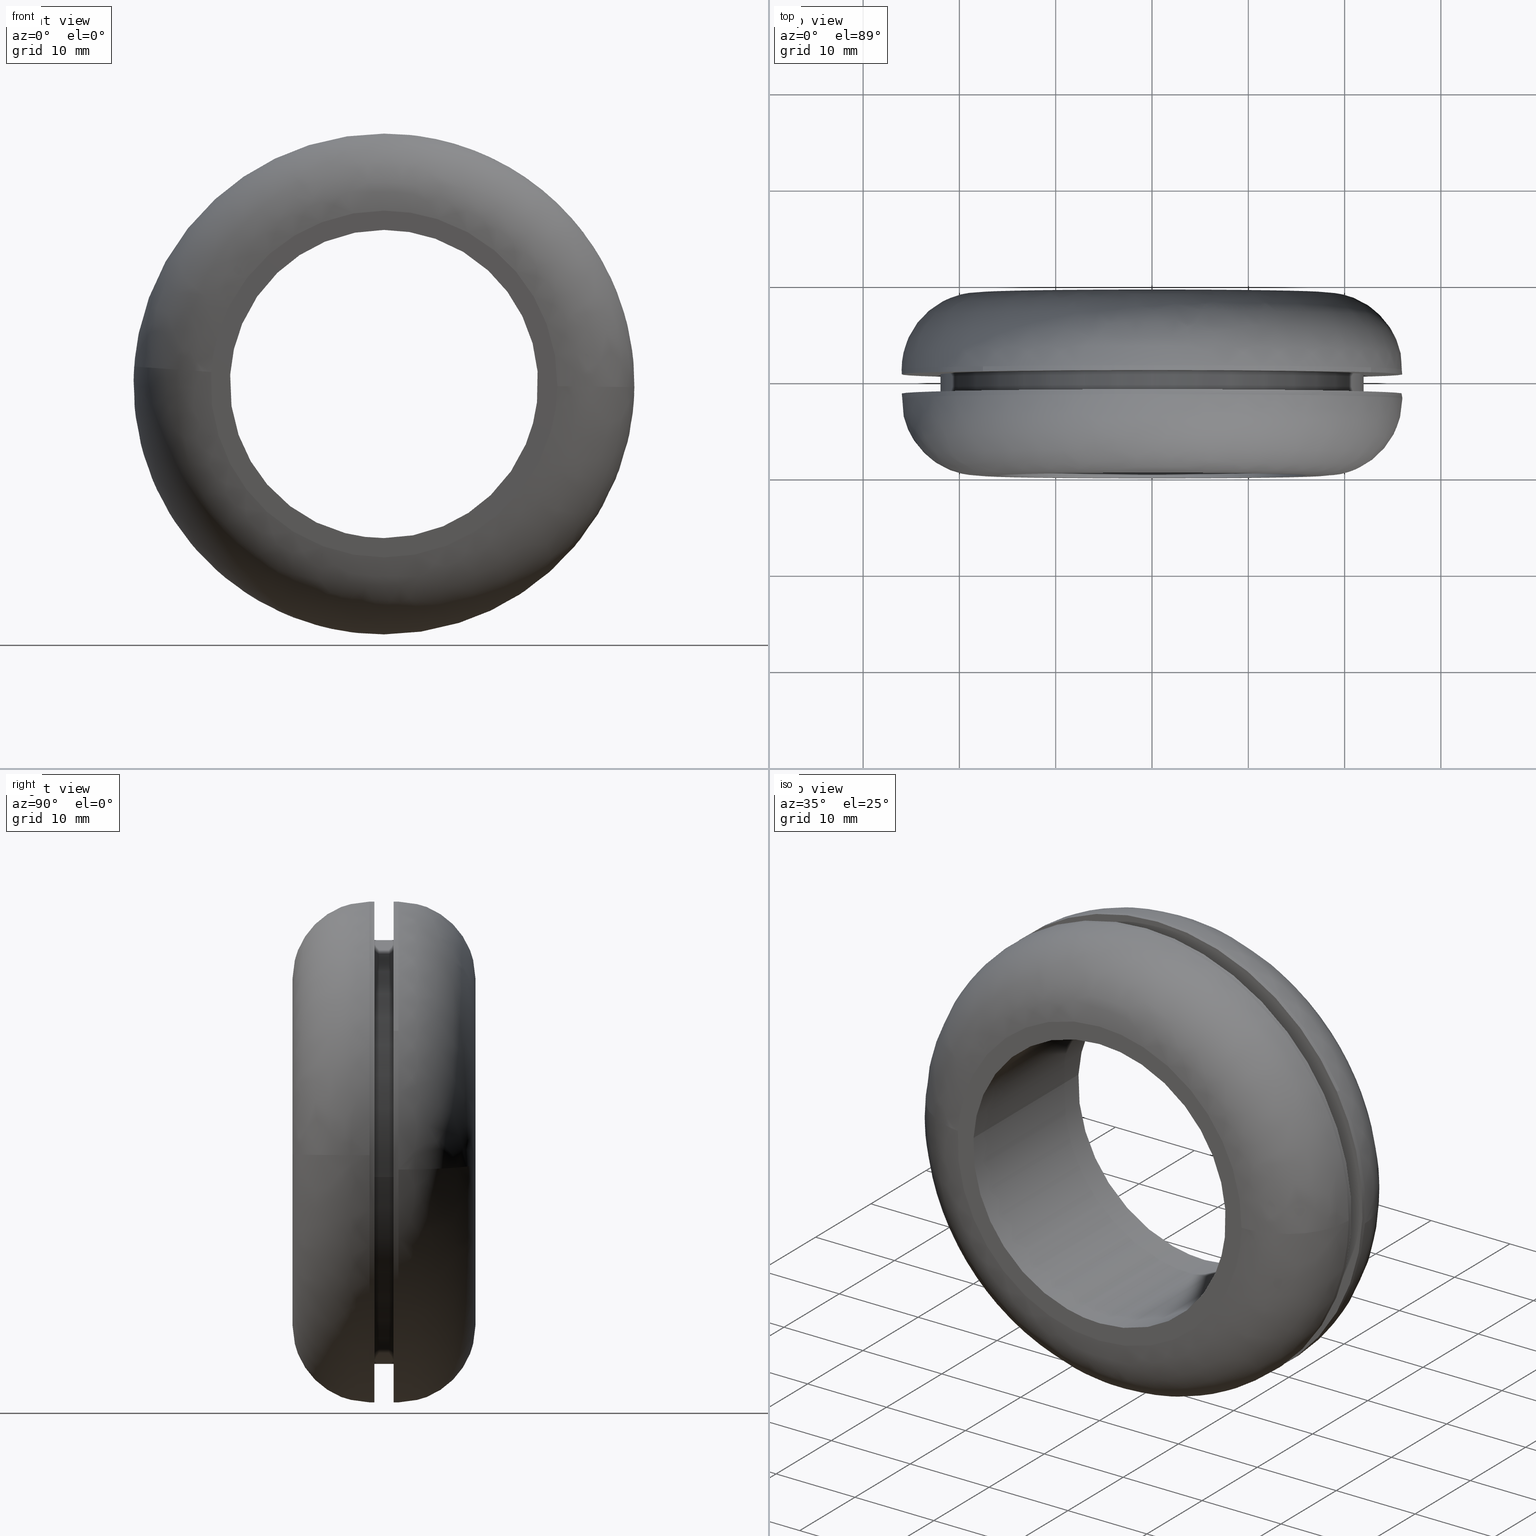
[diagram: canonical four-view strip — front | top / right | iso, engineering-drawing reading convention]
A machine part, canonical four-view strip (front | top / right | iso — engineering-drawing reading convention). The complete STEP part file that produces these views, byte-faithful:
ISO-10303-21;
HEADER;
/****************************************************************
 * Generated by software with PDE/Lib inside                    *
 * PDElib Version 4.4.1-0003, patched  Thursday August 19 11:58 *
 * International Technegroup Inc. (www.iti-oh.com)              *
 ****************************************************************/
FILE_DESCRIPTION((''),'2;1');
FILE_NAME('','2005-12-14T13:40:26',(''),(''),'','CADfix','');
FILE_SCHEMA(('AUTOMOTIVE_DESIGN'));
ENDSEC;
DATA;
#5=APPLICATION_CONTEXT('automotive design');
#6=APPLICATION_PROTOCOL_DEFINITION('Draft International Standard','automotive_design',1998,#5);
#7=PRODUCT_CONTEXT('None',#5,'mechanical');
#8=PRODUCT('grommet','','None',(#7));
#9=PRODUCT_RELATED_PRODUCT_CATEGORY('part','description',(#8));
#10=PRODUCT_DEFINITION_FORMATION('None','None',#8);
#11=PRODUCT_DEFINITION_CONTEXT('part definition',#5,'design');
#12=PRODUCT_DEFINITION('None','None',#10,#11);
#18=(NAMED_UNIT(*)PLANE_ANGLE_UNIT()SI_UNIT($,.RADIAN.));
#19=DIMENSIONAL_EXPONENTS(0.0,0.0,0.0,0.0,0.0,0.0,0.0);
#20=PLANE_ANGLE_MEASURE_WITH_UNIT(PLANE_ANGLE_MEASURE(0.017453292500000),#18);
#24=(CONVERSION_BASED_UNIT('DEGREE',#20)NAMED_UNIT(#19)PLANE_ANGLE_UNIT());
#28=(NAMED_UNIT(*)SI_UNIT($,.STERADIAN.)SOLID_ANGLE_UNIT());
#32=(LENGTH_UNIT()NAMED_UNIT(*)SI_UNIT(.MILLI.,.METRE.));
#34=UNCERTAINTY_MEASURE_WITH_UNIT(LENGTH_MEASURE(0.001000000000000),#32,'DISTANCE_ACCURACY_VALUE','');
#36=(GEOMETRIC_REPRESENTATION_CONTEXT(3)GLOBAL_UNCERTAINTY_ASSIGNED_CONTEXT((#34))GLOBAL_UNIT_ASSIGNED_CONTEXT((#24,#28,#32))REPRESENTATION_CONTEXT('None','None'));
#37=AXIS2_PLACEMENT_3D('',#38,#39,#40);
#38=CARTESIAN_POINT('',(0.0,0.0,0.0));
#39=DIRECTION('',(0.0,0.0,1.0));
#40=DIRECTION('',(1.0,0.0,0.0));
#41=ADVANCED_BREP_SHAPE_REPRESENTATION('',(#37,#1233),#36);
#42=PRODUCT_DEFINITION_SHAPE('','',#12);
#43=SHAPE_DEFINITION_REPRESENTATION(#42,#41);
#44=CARTESIAN_POINT('',(14.110950399751822,8.512500000000001,-21.837606984643337));
#45=CARTESIAN_POINT('',(15.375911889850876,8.512500000000001,-21.020218483378695));
#46=CARTESIAN_POINT('',(16.538033727221858,8.512500000000001,-20.062239168080708));
#47=CARTESIAN_POINT('',(36.600272895302567,8.512500000000001,-3.524205440858857));
#48=CARTESIAN_POINT('',(20.062239168080708,8.512500000000001,16.538033727221858));
#49=CARTESIAN_POINT('',(3.524205440858857,8.512500000000001,36.600272895302567));
#50=CARTESIAN_POINT('',(-16.538033727221858,8.512500000000001,20.062239168080708));
#51=CARTESIAN_POINT('',(-36.600272895302567,8.512500000000001,3.524205440858857));
#52=CARTESIAN_POINT('',(-20.062239168080708,8.512500000000001,-16.538033727221858));
#53=CARTESIAN_POINT('',(14.110950399751822,7.987187500000000,-21.837606984643337));
#54=CARTESIAN_POINT('',(15.375911889850876,7.987187500000001,-21.020218483378695));
#55=CARTESIAN_POINT('',(16.538033727221858,7.987187500000000,-20.062239168080708));
#56=CARTESIAN_POINT('',(36.600272895302567,7.987187500000001,-3.524205440858857));
#57=CARTESIAN_POINT('',(20.062239168080708,7.987187500000000,16.538033727221858));
#58=CARTESIAN_POINT('',(3.524205440858857,7.987187500000001,36.600272895302567));
#59=CARTESIAN_POINT('',(-16.538033727221858,7.987187500000000,20.062239168080708));
#60=CARTESIAN_POINT('',(-36.600272895302567,7.987187500000001,3.524205440858857));
#61=CARTESIAN_POINT('',(-20.062239168080708,7.987187500000000,-16.538033727221858));
#69=(BOUNDED_SURFACE()B_SPLINE_SURFACE(2,1,((#44,#53),(#45,#54),(#46,#55),(#47,#56),(#48,#57),(#49,#58),(#50,#59),(#51,#60),(#52,#61)),.UNSPECIFIED.,.F.,.F.,.U.)B_SPLINE_SURFACE_WITH_KNOTS((3,2,2,2,3),(2,2),(0.0,3.446256838944148,46.524467325746024,89.602677812547896,132.680888299349790),(0.0,1.0),.UNSPECIFIED.)GEOMETRIC_REPRESENTATION_ITEM()RATIONAL_B_SPLINE_SURFACE(((0.956886118190660,0.956886118190660),(0.976568542494924,0.976568542494924),(1.0,1.0),(0.707106781186548,0.707106781186548),(1.0,1.0),(0.707106781186548,0.707106781186548),(1.0,1.0),(0.707106781186548,0.707106781186548),(1.0,1.0)))REPRESENTATION_ITEM('')SURFACE());
#70=CARTESIAN_POINT('',(14.110946435018411,8.000000458614480,-21.837609546559520));
#71=VERTEX_POINT('',#70);
#72=CARTESIAN_POINT('',(25.997947368482730,8.000001292449309,-0.326699594867344));
#73=VERTEX_POINT('',#72);
#74=CARTESIAN_POINT('',(14.110946435018413,8.000000458614480,-21.837609546559523));
#75=CARTESIAN_POINT('',(25.822734219977335,8.000000941488212,-14.269729475274101));
#76=CARTESIAN_POINT('',(25.997947368482727,8.000001292449310,-0.326699594867343));
#84=(BOUNDED_CURVE()B_SPLINE_CURVE(2,(#74,#75,#76),.UNSPECIFIED.,.F.,.U.)B_SPLINE_CURVE_WITH_KNOTS((3,3),(0.092934715241405,0.247784413911472),.UNSPECIFIED.)CURVE()GEOMETRIC_REPRESENTATION_ITEM()RATIONAL_B_SPLINE_CURVE((0.863190116290633,0.816652432885149,0.994854567210753))REPRESENTATION_ITEM(''));
#85=EDGE_CURVE('',#71,#73,#84,.T.);
#86=ORIENTED_EDGE('',*,*,#85,.F.);
#87=CARTESIAN_POINT('',(14.110946463271020,8.500000000000000,-21.837609528304078));
#88=VERTEX_POINT('',#87);
#89=CARTESIAN_POINT('',(14.110946463271020,8.500000000000000,-21.837609528304078));
#90=CARTESIAN_POINT('',(14.110946435018411,8.000000458614480,-21.837609546559520));
#91=QUASI_UNIFORM_CURVE('',1,(#89,#90),.UNSPECIFIED.,.F.,.U.);
#92=EDGE_CURVE('',#88,#71,#91,.T.);
#93=ORIENTED_EDGE('',*,*,#92,.F.);
#94=CARTESIAN_POINT('',(0.0,8.500000000000000,26.0));
#95=VERTEX_POINT('',#94);
#96=CARTESIAN_POINT('',(14.110946463271013,8.500000000000000,-21.837609528304075));
#97=CARTESIAN_POINT('',(26.0,8.499999999999998,-14.155184501961770));
#98=CARTESIAN_POINT('',(26.0,8.500000000000000,-3.673819E-016));
#99=CARTESIAN_POINT('',(26.000000000000007,8.500000000000000,26.000000000000007));
#100=CARTESIAN_POINT('',(0.0,8.500000000000000,26.0));
#108=(BOUNDED_CURVE()B_SPLINE_CURVE(2,(#96,#97,#98,#99,#100),.UNSPECIFIED.,.F.,.U.)B_SPLINE_CURVE_WITH_KNOTS((3,2,3),(0.092934715438809,0.250000000000000,0.500000000000000),.UNSPECIFIED.)CURVE()GEOMETRIC_REPRESENTATION_ITEM()RATIONAL_B_SPLINE_CURVE((0.863190116171979,0.815986572964088,1.0,0.707106781186547,1.0))REPRESENTATION_ITEM(''));
#109=EDGE_CURVE('',#88,#95,#108,.T.);
#110=ORIENTED_EDGE('',*,*,#109,.T.);
#111=CARTESIAN_POINT('',(-20.062241183499570,8.500000000000000,-16.538031282322681));
#112=VERTEX_POINT('',#111);
#113=CARTESIAN_POINT('',(0.0,8.500000000000000,26.0));
#114=CARTESIAN_POINT('',(-26.000000000000007,8.500000000000000,26.000000000000007));
#115=CARTESIAN_POINT('',(-26.0,8.500000000000000,-3.673819E-016));
#116=CARTESIAN_POINT('',(-26.0,8.500000000000000,-9.334952062524092));
#117=CARTESIAN_POINT('',(-20.062241183499573,8.500000000000002,-16.538031282322677));
#125=(BOUNDED_CURVE()B_SPLINE_CURVE(2,(#113,#114,#115,#116,#117),.UNSPECIFIED.,.F.,.U.)B_SPLINE_CURVE_WITH_KNOTS((3,2,3),(0.500000000000000,0.750000000000000,0.860504607429005),.UNSPECIFIED.)CURVE()GEOMETRIC_REPRESENTATION_ITEM()RATIONAL_B_SPLINE_CURVE((1.0,0.707106781186547,1.0,0.870535799345607,0.855522724046603))REPRESENTATION_ITEM(''));
#126=EDGE_CURVE('',#95,#112,#125,.T.);
#127=ORIENTED_EDGE('',*,*,#126,.T.);
#128=CARTESIAN_POINT('',(-20.062241237377869,8.000000601774200,-16.538031216962938));
#129=VERTEX_POINT('',#128);
#130=CARTESIAN_POINT('',(-20.062241183499570,8.500000000000000,-16.538031282322681));
#131=CARTESIAN_POINT('',(-20.062241237377869,8.000000601774200,-16.538031216962938));
#132=QUASI_UNIFORM_CURVE('',1,(#130,#131),.UNSPECIFIED.,.F.,.U.);
#133=EDGE_CURVE('',#112,#129,#132,.T.);
#134=ORIENTED_EDGE('',*,*,#133,.T.);
#135=CARTESIAN_POINT('',(-25.936707732659510,8.000001110807867,1.813061496635619));
#136=VERTEX_POINT('',#135);
#137=CARTESIAN_POINT('',(-25.936707732659517,8.000001110807867,1.813061496635619));
#138=CARTESIAN_POINT('',(-25.999999999999666,8.000001092727255,0.907635485005569));
#139=CARTESIAN_POINT('',(-25.999999999999680,8.000001073338627,-3.426702E-014));
#140=CARTESIAN_POINT('',(-25.999999999999741,8.000000873928279,-9.334952014712572));
#141=CARTESIAN_POINT('',(-20.062241237377872,8.000000601774200,-16.538031216962942));
#149=(BOUNDED_CURVE()B_SPLINE_CURVE(2,(#137,#138,#139,#140,#141),.UNSPECIFIED.,.F.,.U.)B_SPLINE_CURVE_WITH_KNOTS((3,2,3),(0.737833706721611,0.750000000000000,0.860504606936299),.UNSPECIFIED.)CURVE()GEOMETRIC_REPRESENTATION_ITEM()RATIONAL_B_SPLINE_CURVE((0.972879919083209,0.985746300802657,1.0,0.870535799922847,0.855522724180480))REPRESENTATION_ITEM(''));
#150=EDGE_CURVE('',#136,#129,#149,.T.);
#151=ORIENTED_EDGE('',*,*,#150,.F.);
#152=CARTESIAN_POINT('',(0.0,8.0,26.0));
#153=VERTEX_POINT('',#152);
#154=CARTESIAN_POINT('',(0.0,8.0,26.0));
#155=CARTESIAN_POINT('',(-24.245960881750577,8.000000555403934,25.999999999999975));
#156=CARTESIAN_POINT('',(-25.936707732659517,8.000001110807867,1.813061496635619));
#164=(BOUNDED_CURVE()B_SPLINE_CURVE(2,(#154,#155,#156),.UNSPECIFIED.,.F.,.U.)B_SPLINE_CURVE_WITH_KNOTS((3,3),(0.500000000000000,0.737833706721611),.UNSPECIFIED.)CURVE()GEOMETRIC_REPRESENTATION_ITEM()RATIONAL_B_SPLINE_CURVE((1.0,0.721360480383890,0.972879919083209))REPRESENTATION_ITEM(''));
#165=EDGE_CURVE('',#153,#136,#164,.T.);
#166=ORIENTED_EDGE('',*,*,#165,.F.);
#167=CARTESIAN_POINT('',(25.997947368482727,8.000001292449310,-0.326699594867343));
#168=CARTESIAN_POINT('',(25.999999999993950,8.000001288439826,-0.163356245706277));
#169=CARTESIAN_POINT('',(25.999999999993971,8.000001284379637,7.702849E-014));
#170=CARTESIAN_POINT('',(25.999999999997012,8.000000638154983,26.000000000000036));
#171=CARTESIAN_POINT('',(0.0,8.0,26.0));
#179=(BOUNDED_CURVE()B_SPLINE_CURVE(2,(#167,#168,#169,#170,#171),.UNSPECIFIED.,.F.,.U.)B_SPLINE_CURVE_WITH_KNOTS((3,2,3),(0.247784413911472,0.250000000000000,0.500000000000000),.UNSPECIFIED.)CURVE()GEOMETRIC_REPRESENTATION_ITEM()RATIONAL_B_SPLINE_CURVE((0.994854567210753,0.997404279435891,1.0,0.707106781186547,1.0))REPRESENTATION_ITEM(''));
#180=EDGE_CURVE('',#73,#153,#179,.T.);
#181=ORIENTED_EDGE('',*,*,#180,.F.);
#182=EDGE_LOOP('',(#86,#93,#110,#127,#134,#151,#166,#181));
#183=FACE_OUTER_BOUND('',#182,.T.);
#184=ADVANCED_FACE('',(#183),#69,.T.);
#185=CARTESIAN_POINT('',(-20.062239168080708,8.512500000000001,-16.538033727221858));
#186=CARTESIAN_POINT('',(-5.335257385993565,8.512500000000003,-34.403291206402983));
#187=CARTESIAN_POINT('',(14.110950399751822,8.512500000000001,-21.837606984643337));
#188=CARTESIAN_POINT('',(-20.062239168080708,7.987187500000000,-16.538033727221858));
#189=CARTESIAN_POINT('',(-5.335257385993565,7.987187500000001,-34.403291206402983));
#190=CARTESIAN_POINT('',(14.110950399751822,7.987187500000000,-21.837606984643337));
#198=(BOUNDED_SURFACE()B_SPLINE_SURFACE(2,1,((#185,#188),(#186,#189),(#187,#190)),.UNSPECIFIED.,.F.,.F.,.U.)B_SPLINE_SURFACE_WITH_KNOTS((3,3),(2,2),(0.0,39.588482864932452),(0.0,1.0),.UNSPECIFIED.)GEOMETRIC_REPRESENTATION_ITEM()RATIONAL_B_SPLINE_SURFACE(((1.0,1.0),(0.730538238691624,0.730538238691624),(0.956886118190660,0.956886118190660)))REPRESENTATION_ITEM('')SURFACE());
#199=CARTESIAN_POINT('',(0.0,8.0,-26.0));
#200=VERTEX_POINT('',#199);
#201=CARTESIAN_POINT('',(0.0,8.0,-26.0));
#202=CARTESIAN_POINT('',(7.669375848586402,8.000000193031220,-25.999999999999986));
#203=CARTESIAN_POINT('',(14.110946435018414,8.000000458614480,-21.837609546559527));
#211=(BOUNDED_CURVE()B_SPLINE_CURVE(2,(#201,#202,#203),.UNSPECIFIED.,.F.,.U.)B_SPLINE_CURVE_WITH_KNOTS((3,3),(0.0,0.092934715241405),.UNSPECIFIED.)CURVE()GEOMETRIC_REPRESENTATION_ITEM()RATIONAL_B_SPLINE_CURVE((1.0,0.891120208453734,0.863190116290633))REPRESENTATION_ITEM(''));
#212=EDGE_CURVE('',#200,#71,#211,.T.);
#213=ORIENTED_EDGE('',*,*,#212,.F.);
#214=CARTESIAN_POINT('',(-20.062241237377872,8.000000601774200,-16.538031216962942));
#215=CARTESIAN_POINT('',(-12.262398076472840,8.000000244273899,-26.000000000000011));
#216=CARTESIAN_POINT('',(0.0,8.0,-26.0));
#224=(BOUNDED_CURVE()B_SPLINE_CURVE(2,(#214,#215,#216),.UNSPECIFIED.,.F.,.U.)B_SPLINE_CURVE_WITH_KNOTS((3,3),(0.860504606936299,1.0),.UNSPECIFIED.)CURVE()GEOMETRIC_REPRESENTATION_ITEM()RATIONAL_B_SPLINE_CURVE((0.855522724180480,0.836570981263700,1.0))REPRESENTATION_ITEM(''));
#225=EDGE_CURVE('',#129,#200,#224,.T.);
#226=ORIENTED_EDGE('',*,*,#225,.F.);
#227=ORIENTED_EDGE('',*,*,#133,.F.);
#228=CARTESIAN_POINT('',(0.0,8.500000000000000,-26.0));
#229=VERTEX_POINT('',#228);
#230=CARTESIAN_POINT('',(-20.062241183499573,8.500000000000002,-16.538031282322677));
#231=CARTESIAN_POINT('',(-12.262398024700261,8.500000000000002,-26.0));
#232=CARTESIAN_POINT('',(0.0,8.500000000000000,-26.0));
#240=(BOUNDED_CURVE()B_SPLINE_CURVE(2,(#230,#231,#232),.UNSPECIFIED.,.F.,.U.)B_SPLINE_CURVE_WITH_KNOTS((3,3),(0.860504607429005,1.0),.UNSPECIFIED.)CURVE()GEOMETRIC_REPRESENTATION_ITEM()RATIONAL_B_SPLINE_CURVE((0.855522724046603,0.836570981840941,1.0))REPRESENTATION_ITEM(''));
#241=EDGE_CURVE('',#112,#229,#240,.T.);
#242=ORIENTED_EDGE('',*,*,#241,.T.);
#243=CARTESIAN_POINT('',(0.0,8.500000000000000,-26.0));
#244=CARTESIAN_POINT('',(7.669375866868412,8.499999999999998,-25.999999999999996));
#245=CARTESIAN_POINT('',(14.110946463271022,8.500000000000000,-21.837609528304082));
#253=(BOUNDED_CURVE()B_SPLINE_CURVE(2,(#243,#244,#245),.UNSPECIFIED.,.F.,.U.)B_SPLINE_CURVE_WITH_KNOTS((3,3),(0.0,0.092934715438809),.UNSPECIFIED.)CURVE()GEOMETRIC_REPRESENTATION_ITEM()RATIONAL_B_SPLINE_CURVE((1.0,0.891120208222460,0.863190116171980))REPRESENTATION_ITEM(''));
#254=EDGE_CURVE('',#229,#88,#253,.T.);
#255=ORIENTED_EDGE('',*,*,#254,.T.);
#256=ORIENTED_EDGE('',*,*,#92,.T.);
#257=EDGE_LOOP('',(#213,#226,#227,#242,#255,#256));
#258=FACE_OUTER_BOUND('',#257,.T.);
#259=ADVANCED_FACE('',(#258),#198,.T.);
#260=CARTESIAN_POINT('',(21.846209580000668,10.550000000000004,-2.596753162448688));
#261=CARTESIAN_POINT('',(21.920527539869322,10.549999999999997,-1.971524030035509));
#262=CARTESIAN_POINT('',(21.958965565281069,10.550000000000001,-1.343067869766854));
#263=CARTESIAN_POINT('',(23.302033435047928,10.550000000000004,20.615897695514214));
#264=CARTESIAN_POINT('',(1.343067869766854,10.550000000000001,21.958965565281069));
#265=CARTESIAN_POINT('',(-20.615897695514214,10.550000000000004,23.302033435047928));
#266=CARTESIAN_POINT('',(-21.958965565281069,10.550000000000001,1.343067869766853));
#267=CARTESIAN_POINT('',(21.846209580000668,8.448749999999999,-2.596753162448688));
#268=CARTESIAN_POINT('',(21.920527539869322,8.448749999999997,-1.971524030035509));
#269=CARTESIAN_POINT('',(21.958965565281069,8.448749999999999,-1.343067869766854));
#270=CARTESIAN_POINT('',(23.302033435047928,8.448749999999999,20.615897695514214));
#271=CARTESIAN_POINT('',(1.343067869766854,8.448749999999999,21.958965565281069));
#272=CARTESIAN_POINT('',(-20.615897695514214,8.448749999999999,23.302033435047928));
#273=CARTESIAN_POINT('',(-21.958965565281069,8.448749999999999,1.343067869766853));
#281=(BOUNDED_SURFACE()B_SPLINE_SURFACE(2,1,((#260,#267),(#261,#268),(#262,#269),(#263,#270),(#264,#271),(#265,#272),(#266,#273)),.UNSPECIFIED.,.F.,.F.,.U.)B_SPLINE_SURFACE_WITH_KNOTS((3,2,2,3),(2,2),(0.0,1.458031739553297,37.908825228385673,74.359618717218041),(0.0,2.101250000000006),.UNSPECIFIED.)GEOMETRIC_REPRESENTATION_ITEM()RATIONAL_B_SPLINE_SURFACE(((0.977505800795127,0.977505800795127),(0.988284271247462,0.988284271247462),(1.0,1.0),(0.707106781186548,0.707106781186548),(1.0,1.0),(0.707106781186548,0.707106781186548),(1.0,1.0)))REPRESENTATION_ITEM('')SURFACE());
#282=CARTESIAN_POINT('',(21.846210381964781,8.500000000000176,-2.596746415591637));
#283=VERTEX_POINT('',#282);
#284=CARTESIAN_POINT('',(0.0,8.500000000000000,22.0));
#285=VERTEX_POINT('',#284);
#286=CARTESIAN_POINT('',(21.846210381964777,8.500000000000176,-2.596746415591637));
#287=CARTESIAN_POINT('',(21.999999999999996,8.500000000000000,-1.302927223250198));
#288=CARTESIAN_POINT('',(22.0,8.500000000000000,-3.673819E-016));
#289=CARTESIAN_POINT('',(22.000000000000007,8.500000000000002,22.000000000000007));
#290=CARTESIAN_POINT('',(0.0,8.500000000000000,22.0));
#298=(BOUNDED_CURVE()B_SPLINE_CURVE(2,(#286,#287,#288,#289,#290),.UNSPECIFIED.,.F.,.U.)B_SPLINE_CURVE_WITH_KNOTS((3,2,3),(0.229562525709632,0.250000000000000,0.500000000000000),.UNSPECIFIED.)CURVE()GEOMETRIC_REPRESENTATION_ITEM()RATIONAL_B_SPLINE_CURVE((0.956026856490263,0.976056009482707,1.0,0.707106781186548,1.0))REPRESENTATION_ITEM(''));
#299=EDGE_CURVE('',#283,#285,#298,.T.);
#300=ORIENTED_EDGE('',*,*,#299,.F.);
#301=CARTESIAN_POINT('',(21.846210372079330,10.500000000000000,-2.596746498757264));
#302=VERTEX_POINT('',#301);
#303=CARTESIAN_POINT('',(21.846210372079330,10.500000000000000,-2.596746498757264));
#304=CARTESIAN_POINT('',(21.846210381964781,8.500000000000176,-2.596746415591637));
#305=QUASI_UNIFORM_CURVE('',1,(#303,#304),.UNSPECIFIED.,.F.,.U.);
#306=EDGE_CURVE('',#302,#283,#305,.T.);
#307=ORIENTED_EDGE('',*,*,#306,.F.);
#308=CARTESIAN_POINT('',(0.0,10.500000000000000,22.0));
#309=VERTEX_POINT('',#308);
#310=CARTESIAN_POINT('',(21.846210372079330,10.500000000000002,-2.596746498757264));
#311=CARTESIAN_POINT('',(22.0,10.499999999999996,-1.302927265272617));
#312=CARTESIAN_POINT('',(22.0,10.500000000000000,-3.673819E-016));
#313=CARTESIAN_POINT('',(22.000000000000007,10.500000000000002,22.000000000000007));
#314=CARTESIAN_POINT('',(0.0,10.500000000000000,22.0));
#322=(BOUNDED_CURVE()B_SPLINE_CURVE(2,(#310,#311,#312,#313,#314),.UNSPECIFIED.,.F.,.U.)B_SPLINE_CURVE_WITH_KNOTS((3,2,3),(0.229562525066259,0.250000000000000,0.500000000000000),.UNSPECIFIED.)CURVE()GEOMETRIC_REPRESENTATION_ITEM()RATIONAL_B_SPLINE_CURVE((0.956026855229225,0.976056008728949,1.0,0.707106781186548,1.0))REPRESENTATION_ITEM(''));
#323=EDGE_CURVE('',#302,#309,#322,.T.);
#324=ORIENTED_EDGE('',*,*,#323,.T.);
#325=CARTESIAN_POINT('',(-21.958966909477962,10.500000000000000,1.343045891980983));
#326=VERTEX_POINT('',#325);
#327=CARTESIAN_POINT('',(0.0,10.500000000000000,22.0));
#328=CARTESIAN_POINT('',(-20.695554223911344,10.499999999999998,22.000000000000007));
#329=CARTESIAN_POINT('',(-21.958966909477965,10.499999999999996,1.343045891980983));
#337=(BOUNDED_CURVE()B_SPLINE_CURVE(2,(#327,#328,#329),.UNSPECIFIED.,.F.,.U.)B_SPLINE_CURVE_WITH_KNOTS((3,3),(0.500000000000000,0.739333134936665),.UNSPECIFIED.)CURVE()GEOMETRIC_REPRESENTATION_ITEM()RATIONAL_B_SPLINE_CURVE((1.0,0.719603790958744,0.976072411791089))REPRESENTATION_ITEM(''));
#338=EDGE_CURVE('',#309,#326,#337,.T.);
#339=ORIENTED_EDGE('',*,*,#338,.T.);
#340=CARTESIAN_POINT('',(-21.958966926267419,8.500000000000249,1.343045617466656));
#341=VERTEX_POINT('',#340);
#342=CARTESIAN_POINT('',(-21.958966909477962,10.500000000000000,1.343045891980983));
#343=CARTESIAN_POINT('',(-21.958966926267419,8.500000000000249,1.343045617466656));
#344=QUASI_UNIFORM_CURVE('',1,(#342,#343),.UNSPECIFIED.,.F.,.U.);
#345=EDGE_CURVE('',#326,#341,#344,.T.);
#346=ORIENTED_EDGE('',*,*,#345,.T.);
#347=CARTESIAN_POINT('',(0.0,8.500000000000000,22.0));
#348=CARTESIAN_POINT('',(-20.695554483114886,8.500000000000000,22.000000000000004));
#349=CARTESIAN_POINT('',(-21.958966926267419,8.500000000000249,1.343045617466657));
#357=(BOUNDED_CURVE()B_SPLINE_CURVE(2,(#347,#348,#349),.UNSPECIFIED.,.F.,.U.)B_SPLINE_CURVE_WITH_KNOTS((3,3),(0.500000000000000,0.739333137093714),.UNSPECIFIED.)CURVE()GEOMETRIC_REPRESENTATION_ITEM()RATIONAL_B_SPLINE_CURVE((1.0,0.719603788431603,0.976072416414064))REPRESENTATION_ITEM(''));
#358=EDGE_CURVE('',#285,#341,#357,.T.);
#359=ORIENTED_EDGE('',*,*,#358,.F.);
#360=EDGE_LOOP('',(#300,#307,#324,#339,#346,#359));
#361=FACE_OUTER_BOUND('',#360,.T.);
#362=ADVANCED_FACE('',(#361),#281,.T.);
#363=CARTESIAN_POINT('',(-21.958965565281069,10.550000000000001,1.343067869766853));
#364=CARTESIAN_POINT('',(-23.302033435047928,10.550000000000004,-20.615897695514214));
#365=CARTESIAN_POINT('',(-1.343067869766854,10.550000000000001,-21.958965565281069));
#366=CARTESIAN_POINT('',(19.393956798469024,10.550000000000002,-23.227296328115610));
#367=CARTESIAN_POINT('',(21.846209580000668,10.550000000000004,-2.596753162448688));
#368=CARTESIAN_POINT('',(-21.958965565281069,8.448749999999999,1.343067869766853));
#369=CARTESIAN_POINT('',(-23.302033435047928,8.448749999999999,-20.615897695514214));
#370=CARTESIAN_POINT('',(-1.343067869766854,8.448749999999999,-21.958965565281069));
#371=CARTESIAN_POINT('',(19.393956798469024,8.448749999999999,-23.227296328115610));
#372=CARTESIAN_POINT('',(21.846209580000668,8.448749999999999,-2.596753162448688));
#380=(BOUNDED_SURFACE()B_SPLINE_SURFACE(2,1,((#363,#368),(#364,#369),(#365,#370),(#366,#371),(#367,#372)),.UNSPECIFIED.,.F.,.F.,.U.)B_SPLINE_SURFACE_WITH_KNOTS((3,2,3),(2,2),(0.0,36.450793488832367,71.443555238111443),(0.0,2.101250000000006),.UNSPECIFIED.)GEOMETRIC_REPRESENTATION_ITEM()RATIONAL_B_SPLINE_SURFACE(((1.0,1.0),(0.707106781186548,0.707106781186548),(1.0,1.0),(0.718822509939086,0.718822509939086),(0.977505800795127,0.977505800795127)))REPRESENTATION_ITEM('')SURFACE());
#381=CARTESIAN_POINT('',(0.0,8.500000000000000,-22.0));
#382=VERTEX_POINT('',#381);
#383=CARTESIAN_POINT('',(0.0,8.500000000000000,-22.0));
#384=CARTESIAN_POINT('',(19.539845647983238,8.500000000000000,-21.999999999999996));
#385=CARTESIAN_POINT('',(21.846210381964777,8.500000000000176,-2.596746415591637));
#393=(BOUNDED_CURVE()B_SPLINE_CURVE(2,(#383,#384,#385),.UNSPECIFIED.,.F.,.U.)B_SPLINE_CURVE_WITH_KNOTS((3,3),(0.0,0.229562525709632),.UNSPECIFIED.)CURVE()GEOMETRIC_REPRESENTATION_ITEM()RATIONAL_B_SPLINE_CURVE((1.0,0.731050771703840,0.956026856490263))REPRESENTATION_ITEM(''));
#394=EDGE_CURVE('',#382,#283,#393,.T.);
#395=ORIENTED_EDGE('',*,*,#394,.F.);
#396=CARTESIAN_POINT('',(-21.958966926267419,8.500000000000249,1.343045617466657));
#397=CARTESIAN_POINT('',(-22.000000000000004,8.500000000000000,0.672149635223076));
#398=CARTESIAN_POINT('',(-22.0,8.500000000000000,-3.673819E-016));
#399=CARTESIAN_POINT('',(-22.000000000000007,8.500000000000002,-22.000000000000007));
#400=CARTESIAN_POINT('',(0.0,8.500000000000000,-22.0));
#408=(BOUNDED_CURVE()B_SPLINE_CURVE(2,(#396,#397,#398,#399,#400),.UNSPECIFIED.,.F.,.U.)B_SPLINE_CURVE_WITH_KNOTS((3,2,3),(0.739333137093714,0.750000000000000,1.0),.UNSPECIFIED.)CURVE()GEOMETRIC_REPRESENTATION_ITEM()RATIONAL_B_SPLINE_CURVE((0.976072416414064,0.987502992754944,1.0,0.707106781186548,1.0))REPRESENTATION_ITEM(''));
#409=EDGE_CURVE('',#341,#382,#408,.T.);
#410=ORIENTED_EDGE('',*,*,#409,.F.);
#411=ORIENTED_EDGE('',*,*,#345,.F.);
#412=CARTESIAN_POINT('',(0.0,10.500000000000000,-22.0));
#413=VERTEX_POINT('',#412);
#414=CARTESIAN_POINT('',(-21.958966909477965,10.499999999999996,1.343045891980983));
#415=CARTESIAN_POINT('',(-22.0,10.500000000000002,0.672149772865076));
#416=CARTESIAN_POINT('',(-22.0,10.500000000000000,-3.673819E-016));
#417=CARTESIAN_POINT('',(-22.000000000000007,10.500000000000002,-22.000000000000007));
#418=CARTESIAN_POINT('',(0.0,10.500000000000000,-22.0));
#426=(BOUNDED_CURVE()B_SPLINE_CURVE(2,(#414,#415,#416,#417,#418),.UNSPECIFIED.,.F.,.U.)B_SPLINE_CURVE_WITH_KNOTS((3,2,3),(0.739333134936665,0.750000000000000,1.0),.UNSPECIFIED.)CURVE()GEOMETRIC_REPRESENTATION_ITEM()RATIONAL_B_SPLINE_CURVE((0.976072411791089,0.987502990227804,1.0,0.707106781186548,1.0))REPRESENTATION_ITEM(''));
#427=EDGE_CURVE('',#326,#413,#426,.T.);
#428=ORIENTED_EDGE('',*,*,#427,.T.);
#429=CARTESIAN_POINT('',(0.0,10.500000000000000,-22.0));
#430=CARTESIAN_POINT('',(19.539845573073993,10.500000000000000,-22.0));
#431=CARTESIAN_POINT('',(21.846210372079330,10.500000000000002,-2.596746498757264));
#439=(BOUNDED_CURVE()B_SPLINE_CURVE(2,(#429,#430,#431),.UNSPECIFIED.,.F.,.U.)B_SPLINE_CURVE_WITH_KNOTS((3,3),(0.0,0.229562525066259),.UNSPECIFIED.)CURVE()GEOMETRIC_REPRESENTATION_ITEM()RATIONAL_B_SPLINE_CURVE((1.0,0.731050772457599,0.956026855229225))REPRESENTATION_ITEM(''));
#440=EDGE_CURVE('',#413,#302,#439,.T.);
#441=ORIENTED_EDGE('',*,*,#440,.T.);
#442=ORIENTED_EDGE('',*,*,#306,.T.);
#443=EDGE_LOOP('',(#395,#410,#411,#428,#441,#442));
#444=FACE_OUTER_BOUND('',#443,.T.);
#445=ADVANCED_FACE('',(#444),#380,.T.);
#446=CARTESIAN_POINT('',(22.748607113521377,11.012499999999999,12.589713038613862));
#447=CARTESIAN_POINT('',(21.254211966717687,11.012500000000005,15.289965853171521));
#448=CARTESIAN_POINT('',(19.169210757063219,11.012499999999999,17.565345398007160));
#449=CARTESIAN_POINT('',(1.603865359056054,11.012499999999999,36.734556155070372));
#450=CARTESIAN_POINT('',(-17.565345398007160,11.012499999999999,19.169210757063219));
#451=CARTESIAN_POINT('',(22.748607113521377,10.487187499999997,12.589713038613862));
#452=CARTESIAN_POINT('',(21.254211966717687,10.487187499999997,15.289965853171521));
#453=CARTESIAN_POINT('',(19.169210757063219,10.487187499999999,17.565345398007160));
#454=CARTESIAN_POINT('',(1.603865359056054,10.487187499999997,36.734556155070372));
#455=CARTESIAN_POINT('',(-17.565345398007160,10.487187499999999,19.169210757063219));
#463=(BOUNDED_SURFACE()B_SPLINE_SURFACE(2,1,((#446,#451),(#447,#452),(#448,#453),(#449,#454),(#450,#455)),.UNSPECIFIED.,.F.,.F.,.U.)B_SPLINE_SURFACE_WITH_KNOTS((3,2,3),(2,2),(0.0,6.892513677888309,49.970724164690182),(0.0,1.0),.UNSPECIFIED.)GEOMETRIC_REPRESENTATION_ITEM()RATIONAL_B_SPLINE_SURFACE(((0.921270302782944,0.921270302782944),(0.953137084989848,0.953137084989848),(1.0,1.0),(0.707106781186548,0.707106781186548),(1.0,1.0)))REPRESENTATION_ITEM('')SURFACE());
#464=CARTESIAN_POINT('',(22.748609441721719,10.999995030012050,12.589708831735640));
#465=VERTEX_POINT('',#464);
#466=CARTESIAN_POINT('',(0.0,11.0,26.0));
#467=VERTEX_POINT('',#466);
#468=CARTESIAN_POINT('',(22.748609441721715,10.999995030012045,12.589708831735633));
#469=CARTESIAN_POINT('',(15.326983887434308,10.999997948372934,26.000000000000131));
#470=CARTESIAN_POINT('',(0.0,11.0,26.0));
#478=(BOUNDED_CURVE()B_SPLINE_CURVE(2,(#468,#469,#470),.UNSPECIFIED.,.F.,.U.)B_SPLINE_CURVE_WITH_KNOTS((3,3),(0.332484260513151,0.500000000000000),.UNSPECIFIED.)CURVE()GEOMETRIC_REPRESENTATION_ITEM()RATIONAL_B_SPLINE_CURVE((0.870495160132561,0.803743103439125,1.0))REPRESENTATION_ITEM(''));
#479=EDGE_CURVE('',#465,#467,#478,.T.);
#480=ORIENTED_EDGE('',*,*,#479,.T.);
#481=CARTESIAN_POINT('',(-17.565344340139308,10.999996405808179,19.169211726417540));
#482=VERTEX_POINT('',#481);
#483=CARTESIAN_POINT('',(0.0,11.0,26.0));
#484=CARTESIAN_POINT('',(-10.110846202271471,10.999998505180290,25.999999999999964));
#485=CARTESIAN_POINT('',(-17.565344340139305,10.999996405808176,19.169211726417540));
#493=(BOUNDED_CURVE()B_SPLINE_CURVE(2,(#483,#484,#485),.UNSPECIFIED.,.F.,.U.)B_SPLINE_CURVE_WITH_KNOTS((3,3),(0.500000000000000,0.618415200753254),.UNSPECIFIED.)CURVE()GEOMETRIC_REPRESENTATION_ITEM()RATIONAL_B_SPLINE_CURVE((1.0,0.861267962779753,0.853959781866254))REPRESENTATION_ITEM(''));
#494=EDGE_CURVE('',#467,#482,#493,.T.);
#495=ORIENTED_EDGE('',*,*,#494,.T.);
#496=CARTESIAN_POINT('',(-17.565344368191440,10.500000000000000,19.169211700715369));
#497=VERTEX_POINT('',#496);
#498=CARTESIAN_POINT('',(-17.565344340139308,10.999996405808179,19.169211726417540));
#499=CARTESIAN_POINT('',(-17.565344368191440,10.500000000000000,19.169211700715369));
#500=QUASI_UNIFORM_CURVE('',1,(#498,#499),.UNSPECIFIED.,.F.,.U.);
#501=EDGE_CURVE('',#482,#497,#500,.T.);
#502=ORIENTED_EDGE('',*,*,#501,.T.);
#503=CARTESIAN_POINT('',(0.0,10.500000000000000,26.0));
#504=VERTEX_POINT('',#503);
#505=CARTESIAN_POINT('',(0.0,10.500000000000000,26.0));
#506=CARTESIAN_POINT('',(-10.110846224171421,10.500000000000000,26.0));
#507=CARTESIAN_POINT('',(-17.565344368191464,10.500000000000000,19.169211700715408));
#515=(BOUNDED_CURVE()B_SPLINE_CURVE(2,(#505,#506,#507),.UNSPECIFIED.,.F.,.U.)B_SPLINE_CURVE_WITH_KNOTS((3,3),(0.500000000000000,0.618415200974131),.UNSPECIFIED.)CURVE()GEOMETRIC_REPRESENTATION_ITEM()RATIONAL_B_SPLINE_CURVE((1.0,0.861267962520980,0.853959781838990))REPRESENTATION_ITEM(''));
#516=EDGE_CURVE('',#504,#497,#515,.T.);
#517=ORIENTED_EDGE('',*,*,#516,.F.);
#518=CARTESIAN_POINT('',(22.748609258258821,10.500000000000000,12.589709163242860));
#519=VERTEX_POINT('',#518);
#520=CARTESIAN_POINT('',(22.748609258258824,10.500000000000000,12.589709163242860));
#521=CARTESIAN_POINT('',(15.326983632157340,10.500000000000000,26.000000000000004));
#522=CARTESIAN_POINT('',(0.0,10.500000000000000,26.0));
#530=(BOUNDED_CURVE()B_SPLINE_CURVE(2,(#520,#521,#522),.UNSPECIFIED.,.F.,.U.)B_SPLINE_CURVE_WITH_KNOTS((3,3),(0.332484262755645,0.500000000000000),.UNSPECIFIED.)CURVE()GEOMETRIC_REPRESENTATION_ITEM()RATIONAL_B_SPLINE_CURVE((0.870495158345373,0.803743106066369,1.0))REPRESENTATION_ITEM(''));
#531=EDGE_CURVE('',#519,#504,#530,.T.);
#532=ORIENTED_EDGE('',*,*,#531,.F.);
#533=CARTESIAN_POINT('',(22.748609441721719,10.999995030012050,12.589708831735640));
#534=CARTESIAN_POINT('',(22.748609258258821,10.500000000000000,12.589709163242860));
#535=QUASI_UNIFORM_CURVE('',1,(#533,#534),.UNSPECIFIED.,.F.,.U.);
#536=EDGE_CURVE('',#465,#519,#535,.T.);
#537=ORIENTED_EDGE('',*,*,#536,.F.);
#538=EDGE_LOOP('',(#480,#495,#502,#517,#532,#537));
#539=FACE_OUTER_BOUND('',#538,.T.);
#540=ADVANCED_FACE('',(#539),#463,.T.);
#541=CARTESIAN_POINT('',(-17.565345398007160,11.012499999999999,19.169210757063219));
#542=CARTESIAN_POINT('',(-36.734556155070372,11.012499999999999,1.603865359056054));
#543=CARTESIAN_POINT('',(-19.169210757063219,11.012499999999999,-17.565345398007160));
#544=CARTESIAN_POINT('',(-1.603865359056054,11.012499999999999,-36.734556155070372));
#545=CARTESIAN_POINT('',(17.565345398007160,11.012499999999999,-19.169210757063219));
#546=CARTESIAN_POINT('',(32.666655632540667,11.012499999999999,-5.331409420651790));
#547=CARTESIAN_POINT('',(22.748607113521377,11.012499999999999,12.589713038613862));
#548=CARTESIAN_POINT('',(-17.565345398007160,10.487187499999999,19.169210757063219));
#549=CARTESIAN_POINT('',(-36.734556155070372,10.487187499999997,1.603865359056054));
#550=CARTESIAN_POINT('',(-19.169210757063219,10.487187499999999,-17.565345398007160));
#551=CARTESIAN_POINT('',(-1.603865359056054,10.487187499999997,-36.734556155070372));
#552=CARTESIAN_POINT('',(17.565345398007160,10.487187499999999,-19.169210757063219));
#553=CARTESIAN_POINT('',(32.666655632540667,10.487187499999997,-5.331409420651790));
#554=CARTESIAN_POINT('',(22.748607113521377,10.487187499999997,12.589713038613862));
#562=(BOUNDED_SURFACE()B_SPLINE_SURFACE(2,1,((#541,#548),(#542,#549),(#543,#550),(#544,#551),(#545,#552),(#546,#553),(#547,#554)),.UNSPECIFIED.,.F.,.F.,.U.)B_SPLINE_SURFACE_WITH_KNOTS((3,2,2,3),(2,2),(0.0,43.078210486801872,86.156420973603744,122.342117782517310),(0.0,1.0),.UNSPECIFIED.)GEOMETRIC_REPRESENTATION_ITEM()RATIONAL_B_SPLINE_SURFACE(((1.0,1.0),(0.707106781186548,0.707106781186548),(1.0,1.0),(0.707106781186548,0.707106781186548),(1.0,1.0),(0.753969696196700,0.753969696196700),(0.921270302782944,0.921270302782944)))REPRESENTATION_ITEM('')SURFACE());
#563=CARTESIAN_POINT('',(25.936707730010632,10.999992535873170,-1.813061534431493));
#564=VERTEX_POINT('',#563);
#565=CARTESIAN_POINT('',(25.936707730010635,10.999992535873174,-1.813061534431493));
#566=CARTESIAN_POINT('',(25.999999999992990,10.999992657366713,-0.907635503972486));
#567=CARTESIAN_POINT('',(25.999999999993111,10.999992787649530,4.789478E-013));
#568=CARTESIAN_POINT('',(25.999999999994028,10.999993751484032,6.714702908939736));
#569=CARTESIAN_POINT('',(22.748609441721715,10.999995030012045,12.589708831735633));
#577=(BOUNDED_CURVE()B_SPLINE_CURVE(2,(#565,#566,#567,#568,#569),.UNSPECIFIED.,.F.,.U.)B_SPLINE_CURVE_WITH_KNOTS((3,2,3),(0.237833706470990,0.250000000000000,0.332484260513151),.UNSPECIFIED.)CURVE()GEOMETRIC_REPRESENTATION_ITEM()RATIONAL_B_SPLINE_CURVE((0.972879918553122,0.985746300509035,1.0,0.903363677747423,0.870495160132561))REPRESENTATION_ITEM(''));
#578=EDGE_CURVE('',#564,#465,#577,.T.);
#579=ORIENTED_EDGE('',*,*,#578,.T.);
#580=ORIENTED_EDGE('',*,*,#536,.T.);
#581=CARTESIAN_POINT('',(0.0,10.500000000000000,-26.0));
#582=VERTEX_POINT('',#581);
#583=CARTESIAN_POINT('',(0.0,10.500000000000000,-26.0));
#584=CARTESIAN_POINT('',(26.000000000000007,10.500000000000000,-26.000000000000007));
#585=CARTESIAN_POINT('',(26.0,10.500000000000000,-3.673819E-016));
#586=CARTESIAN_POINT('',(26.0,10.500000000000000,6.714703111019753));
#587=CARTESIAN_POINT('',(22.748609258258824,10.500000000000000,12.589709163242860));
#595=(BOUNDED_CURVE()B_SPLINE_CURVE(2,(#583,#584,#585,#586,#587),.UNSPECIFIED.,.F.,.U.)B_SPLINE_CURVE_WITH_KNOTS((3,2,3),(0.0,0.250000000000000,0.332484262755645),.UNSPECIFIED.)CURVE()GEOMETRIC_REPRESENTATION_ITEM()RATIONAL_B_SPLINE_CURVE((1.0,0.707106781186547,1.0,0.903363675120178,0.870495158345373))REPRESENTATION_ITEM(''));
#596=EDGE_CURVE('',#582,#519,#595,.T.);
#597=ORIENTED_EDGE('',*,*,#596,.F.);
#598=CARTESIAN_POINT('',(-17.565344368191464,10.500000000000000,19.169211700715408));
#599=CARTESIAN_POINT('',(-25.999999999999996,10.500000000000000,11.440274636793623));
#600=CARTESIAN_POINT('',(-26.0,10.500000000000000,-3.673819E-016));
#601=CARTESIAN_POINT('',(-26.000000000000007,10.500000000000000,-26.000000000000007));
#602=CARTESIAN_POINT('',(0.0,10.500000000000000,-26.0));
#610=(BOUNDED_CURVE()B_SPLINE_CURVE(2,(#598,#599,#600,#601,#602),.UNSPECIFIED.,.F.,.U.)B_SPLINE_CURVE_WITH_KNOTS((3,2,3),(0.618415200974131,0.750000000000000,1.0),.UNSPECIFIED.)CURVE()GEOMETRIC_REPRESENTATION_ITEM()RATIONAL_B_SPLINE_CURVE((0.853959781838990,0.845838818665567,1.0,0.707106781186547,1.0))REPRESENTATION_ITEM(''));
#611=EDGE_CURVE('',#497,#582,#610,.T.);
#612=ORIENTED_EDGE('',*,*,#611,.F.);
#613=ORIENTED_EDGE('',*,*,#501,.F.);
#614=CARTESIAN_POINT('',(-25.997947368348360,10.999992408155631,0.326699605003920));
#615=VERTEX_POINT('',#614);
#616=CARTESIAN_POINT('',(-17.565344340139305,10.999996405808176,19.169211726417540));
#617=CARTESIAN_POINT('',(-25.856639376555272,10.999994070774759,11.571640453322299));
#618=CARTESIAN_POINT('',(-25.997947368348367,10.999992408155631,0.326699605003920));
#626=(BOUNDED_CURVE()B_SPLINE_CURVE(2,(#616,#617,#618),.UNSPECIFIED.,.F.,.U.)B_SPLINE_CURVE_WITH_KNOTS((3,3),(0.618415200753254,0.747784413842901),.UNSPECIFIED.)CURVE()GEOMETRIC_REPRESENTATION_ITEM()RATIONAL_B_SPLINE_CURVE((0.853959781866254,0.845975556801549,0.994854567052929))REPRESENTATION_ITEM(''));
#627=EDGE_CURVE('',#482,#615,#626,.T.);
#628=ORIENTED_EDGE('',*,*,#627,.T.);
#629=CARTESIAN_POINT('',(0.0,11.0,-26.0));
#630=VERTEX_POINT('',#629);
#631=CARTESIAN_POINT('',(-25.997947368348360,10.999992408155629,0.326699605003920));
#632=CARTESIAN_POINT('',(-25.999999999986986,10.999992431707335,0.163356250775127));
#633=CARTESIAN_POINT('',(-25.999999999987029,10.999992455556860,-1.544972E-013));
#634=CARTESIAN_POINT('',(-25.999999999993559,10.999996251479041,-26.000000000000082));
#635=CARTESIAN_POINT('',(0.0,11.0,-26.0));
#643=(BOUNDED_CURVE()B_SPLINE_CURVE(2,(#631,#632,#633,#634,#635),.UNSPECIFIED.,.F.,.U.)B_SPLINE_CURVE_WITH_KNOTS((3,2,3),(0.747784413842901,0.750000000000000,1.0),.UNSPECIFIED.)CURVE()GEOMETRIC_REPRESENTATION_ITEM()RATIONAL_B_SPLINE_CURVE((0.994854567052930,0.997404279355555,1.0,0.707106781186547,1.0))REPRESENTATION_ITEM(''));
#644=EDGE_CURVE('',#615,#630,#643,.T.);
#645=ORIENTED_EDGE('',*,*,#644,.T.);
#646=CARTESIAN_POINT('',(0.0,11.0,-26.0));
#647=CARTESIAN_POINT('',(24.245960846328479,10.999996267936584,-25.999999999999758));
#648=CARTESIAN_POINT('',(25.936707730010635,10.999992535873174,-1.813061534431493));
#656=(BOUNDED_CURVE()B_SPLINE_CURVE(2,(#646,#647,#648),.UNSPECIFIED.,.F.,.U.)B_SPLINE_CURVE_WITH_KNOTS((3,3),(0.0,0.237833706470990),.UNSPECIFIED.)CURVE()GEOMETRIC_REPRESENTATION_ITEM()RATIONAL_B_SPLINE_CURVE((1.0,0.721360480677512,0.972879918553122))REPRESENTATION_ITEM(''));
#657=EDGE_CURVE('',#630,#564,#656,.T.);
#658=ORIENTED_EDGE('',*,*,#657,.T.);
#659=EDGE_LOOP('',(#579,#580,#597,#612,#613,#628,#645,#658));
#660=FACE_OUTER_BOUND('',#659,.T.);
#661=ADVANCED_FACE('',(#660),#562,.T.);
#662=CARTESIAN_POINT('',(15.888152421818658,19.475000000000009,-1.888547754508136));
#663=CARTESIAN_POINT('',(15.942201847177685,19.475000000000012,-1.433835658207643));
#664=CARTESIAN_POINT('',(15.970156774749871,19.475000000000009,-0.976776632557712));
#665=CARTESIAN_POINT('',(16.946933407307572,19.475000000000009,14.993380142192160));
#666=CARTESIAN_POINT('',(0.976776632557712,19.475000000000009,15.970156774749871));
#667=CARTESIAN_POINT('',(-14.993380142192160,19.475000000000009,16.946933407307572));
#668=CARTESIAN_POINT('',(-15.970156774749871,19.475000000000009,0.976776632557711));
#669=CARTESIAN_POINT('',(15.888152421818658,-0.486875000000001,-1.888547754508136));
#670=CARTESIAN_POINT('',(15.942201847177685,-0.486875000000001,-1.433835658207643));
#671=CARTESIAN_POINT('',(15.970156774749871,-0.486875000000001,-0.976776632557712));
#672=CARTESIAN_POINT('',(16.946933407307572,-0.486875000000001,14.993380142192160));
#673=CARTESIAN_POINT('',(0.976776632557712,-0.486875000000001,15.970156774749871));
#674=CARTESIAN_POINT('',(-14.993380142192160,-0.486875000000001,16.946933407307572));
#675=CARTESIAN_POINT('',(-15.970156774749871,-0.486875000000001,0.976776632557711));
#683=(BOUNDED_SURFACE()B_SPLINE_SURFACE(2,1,((#662,#669),(#663,#670),(#664,#671),(#665,#672),(#666,#673),(#667,#674),(#668,#675)),.UNSPECIFIED.,.F.,.F.,.U.)B_SPLINE_SURFACE_WITH_KNOTS((3,2,2,3),(2,2),(0.0,1.060386719675124,27.570054711553190,54.079722703431273),(0.0,19.961875000000010),.UNSPECIFIED.)GEOMETRIC_REPRESENTATION_ITEM()RATIONAL_B_SPLINE_SURFACE(((0.977505800795127,0.977505800795127),(0.988284271247462,0.988284271247462),(1.0,1.0),(0.707106781186548,0.707106781186548),(1.0,1.0),(0.707106781186548,0.707106781186548),(1.0,1.0)))REPRESENTATION_ITEM('')SURFACE());
#684=CARTESIAN_POINT('',(15.888154890393080,18.999999999999961,-1.888526986421135));
#685=VERTEX_POINT('',#684);
#686=CARTESIAN_POINT('',(0.0,19.0,16.0));
#687=VERTEX_POINT('',#686);
#688=CARTESIAN_POINT('',(15.888154890393078,18.999999999999961,-1.888526986421135));
#689=CARTESIAN_POINT('',(16.000000000000007,19.0,-0.947575420610316));
#690=CARTESIAN_POINT('',(16.0,19.0,-3.673819E-016));
#691=CARTESIAN_POINT('',(15.999999999999998,18.999999999999993,15.999999999999998));
#692=CARTESIAN_POINT('',(0.0,19.0,16.0));
#700=(BOUNDED_CURVE()B_SPLINE_CURVE(2,(#688,#689,#690,#691,#692),.UNSPECIFIED.,.F.,.U.)B_SPLINE_CURVE_WITH_KNOTS((3,2,3),(0.229562694427073,0.250000000000000,0.500000000000000),.UNSPECIFIED.)CURVE()GEOMETRIC_REPRESENTATION_ITEM()RATIONAL_B_SPLINE_CURVE((0.956027187183784,0.976056207147485,1.0,0.707106781186548,1.0))REPRESENTATION_ITEM(''));
#701=EDGE_CURVE('',#685,#687,#700,.T.);
#702=ORIENTED_EDGE('',*,*,#701,.F.);
#703=CARTESIAN_POINT('',(15.888154860658560,-3.996619E-015,-1.888527236580032));
#704=VERTEX_POINT('',#703);
#705=CARTESIAN_POINT('',(15.888154890393080,18.999999999999961,-1.888526986421135));
#706=CARTESIAN_POINT('',(15.888154860658560,-3.996619E-015,-1.888527236580032));
#707=QUASI_UNIFORM_CURVE('',1,(#705,#706),.UNSPECIFIED.,.F.,.U.);
#708=EDGE_CURVE('',#685,#704,#707,.T.);
#709=ORIENTED_EDGE('',*,*,#708,.T.);
#710=CARTESIAN_POINT('',(0.0,-2.939055E-015,16.0));
#711=VERTEX_POINT('',#710);
#712=CARTESIAN_POINT('',(15.888154860658563,-3.996619E-015,-1.888527236580032));
#713=CARTESIAN_POINT('',(15.999999999999996,-2.939055E-015,-0.947575547012040));
#714=CARTESIAN_POINT('',(16.0,-2.939055E-015,-3.673819E-016));
#715=CARTESIAN_POINT('',(15.999999999999998,-2.939055E-015,15.999999999999998));
#716=CARTESIAN_POINT('',(0.0,-2.939055E-015,16.0));
#724=(BOUNDED_CURVE()B_SPLINE_CURVE(2,(#712,#713,#714,#715,#716),.UNSPECIFIED.,.F.,.U.)B_SPLINE_CURVE_WITH_KNOTS((3,2,3),(0.229562691766117,0.250000000000000,0.500000000000000),.UNSPECIFIED.)CURVE()GEOMETRIC_REPRESENTATION_ITEM()RATIONAL_B_SPLINE_CURVE((0.956027181968191,0.976056204029982,1.0,0.707106781186548,1.0))REPRESENTATION_ITEM(''));
#725=EDGE_CURVE('',#704,#711,#724,.T.);
#726=ORIENTED_EDGE('',*,*,#725,.T.);
#727=CARTESIAN_POINT('',(-15.970157002924900,-4.078552E-015,0.976772901914701));
#728=VERTEX_POINT('',#727);
#729=CARTESIAN_POINT('',(0.0,-2.939055E-015,16.0));
#730=CARTESIAN_POINT('',(-15.051300593058317,-2.939055E-015,16.000000000000004));
#731=CARTESIAN_POINT('',(-15.970157002924894,-4.078552E-015,0.976772901914701));
#739=(BOUNDED_CURVE()B_SPLINE_CURVE(2,(#729,#730,#731),.UNSPECIFIED.,.F.,.U.)B_SPLINE_CURVE_WITH_KNOTS((3,3),(0.500000000000000,0.739333002549055),.UNSPECIFIED.)CURVE()GEOMETRIC_REPRESENTATION_ITEM()RATIONAL_B_SPLINE_CURVE((1.0,0.719603946060476,0.976072128058977))REPRESENTATION_ITEM(''));
#740=EDGE_CURVE('',#711,#728,#739,.T.);
#741=ORIENTED_EDGE('',*,*,#740,.T.);
#742=CARTESIAN_POINT('',(-15.970157005703809,18.999999999999989,0.976772856479495));
#743=VERTEX_POINT('',#742);
#744=CARTESIAN_POINT('',(-15.970157005703809,18.999999999999989,0.976772856479495));
#745=CARTESIAN_POINT('',(-15.970157002924900,-4.078552E-015,0.976772901914701));
#746=QUASI_UNIFORM_CURVE('',1,(#744,#745),.UNSPECIFIED.,.F.,.U.);
#747=EDGE_CURVE('',#743,#728,#746,.T.);
#748=ORIENTED_EDGE('',*,*,#747,.F.);
#749=CARTESIAN_POINT('',(0.0,19.0,16.0));
#750=CARTESIAN_POINT('',(-15.051300635959381,19.0,16.000000000000004));
#751=CARTESIAN_POINT('',(-15.970157005703813,18.999999999999996,0.976772856479495));
#759=(BOUNDED_CURVE()B_SPLINE_CURVE(2,(#749,#750,#751),.UNSPECIFIED.,.F.,.U.)B_SPLINE_CURVE_WITH_KNOTS((3,3),(0.500000000000000,0.739333003039952),.UNSPECIFIED.)CURVE()GEOMETRIC_REPRESENTATION_ITEM()RATIONAL_B_SPLINE_CURVE((1.0,0.719603945485355,0.976072129111062))REPRESENTATION_ITEM(''));
#760=EDGE_CURVE('',#687,#743,#759,.T.);
#761=ORIENTED_EDGE('',*,*,#760,.F.);
#762=EDGE_LOOP('',(#702,#709,#726,#741,#748,#761));
#763=FACE_OUTER_BOUND('',#762,.T.);
#764=ADVANCED_FACE('',(#763),#683,.F.);
#765=CARTESIAN_POINT('',(-15.970156774749871,19.475000000000009,0.976776632557711));
#766=CARTESIAN_POINT('',(-16.946933407307572,19.475000000000009,-14.993380142192160));
#767=CARTESIAN_POINT('',(-0.976776632557712,19.475000000000009,-15.970156774749871));
#768=CARTESIAN_POINT('',(14.104695853432020,19.475000000000009,-16.892579147720443));
#769=CARTESIAN_POINT('',(15.888152421818658,19.475000000000009,-1.888547754508136));
#770=CARTESIAN_POINT('',(-15.970156774749871,-0.486875000000001,0.976776632557711));
#771=CARTESIAN_POINT('',(-16.946933407307572,-0.486875000000001,-14.993380142192160));
#772=CARTESIAN_POINT('',(-0.976776632557712,-0.486875000000001,-15.970156774749871));
#773=CARTESIAN_POINT('',(14.104695853432020,-0.486875000000001,-16.892579147720443));
#774=CARTESIAN_POINT('',(15.888152421818658,-0.486875000000001,-1.888547754508136));
#782=(BOUNDED_SURFACE()B_SPLINE_SURFACE(2,1,((#765,#770),(#766,#771),(#767,#772),(#768,#773),(#769,#774)),.UNSPECIFIED.,.F.,.F.,.U.)B_SPLINE_SURFACE_WITH_KNOTS((3,2,3),(2,2),(0.0,26.509667991878072,51.958949264081021),(0.0,19.961875000000010),.UNSPECIFIED.)GEOMETRIC_REPRESENTATION_ITEM()RATIONAL_B_SPLINE_SURFACE(((1.0,1.0),(0.707106781186548,0.707106781186548),(1.0,1.0),(0.718822509939086,0.718822509939086),(0.977505800795127,0.977505800795127)))REPRESENTATION_ITEM('')SURFACE());
#783=CARTESIAN_POINT('',(0.0,19.0,-16.0));
#784=VERTEX_POINT('',#783);
#785=CARTESIAN_POINT('',(0.0,19.0,-16.0));
#786=CARTESIAN_POINT('',(14.210811121533384,18.999999999999996,-16.000000000000004));
#787=CARTESIAN_POINT('',(15.888154890393078,18.999999999999961,-1.888526986421135));
#795=(BOUNDED_CURVE()B_SPLINE_CURVE(2,(#785,#786,#787),.UNSPECIFIED.,.F.,.U.)B_SPLINE_CURVE_WITH_KNOTS((3,3),(0.0,0.229562694427073),.UNSPECIFIED.)CURVE()GEOMETRIC_REPRESENTATION_ITEM()RATIONAL_B_SPLINE_CURVE((1.0,0.731050574039062,0.956027187183784))REPRESENTATION_ITEM(''));
#796=EDGE_CURVE('',#784,#685,#795,.T.);
#797=ORIENTED_EDGE('',*,*,#796,.F.);
#798=CARTESIAN_POINT('',(-15.970157005703813,18.999999999999996,0.976772856479495));
#799=CARTESIAN_POINT('',(-16.000000000000007,18.999999999999996,0.488842319444472));
#800=CARTESIAN_POINT('',(-16.0,19.0,-3.673819E-016));
#801=CARTESIAN_POINT('',(-15.999999999999998,18.999999999999993,-15.999999999999998));
#802=CARTESIAN_POINT('',(0.0,19.0,-16.0));
#810=(BOUNDED_CURVE()B_SPLINE_CURVE(2,(#798,#799,#800,#801,#802),.UNSPECIFIED.,.F.,.U.)B_SPLINE_CURVE_WITH_KNOTS((3,2,3),(0.739333003039952,0.750000000000000,1.0),.UNSPECIFIED.)CURVE()GEOMETRIC_REPRESENTATION_ITEM()RATIONAL_B_SPLINE_CURVE((0.976072129111062,0.987502835701193,1.0,0.707106781186548,1.0))REPRESENTATION_ITEM(''));
#811=EDGE_CURVE('',#743,#784,#810,.T.);
#812=ORIENTED_EDGE('',*,*,#811,.F.);
#813=ORIENTED_EDGE('',*,*,#747,.T.);
#814=CARTESIAN_POINT('',(0.0,-2.939055E-015,-16.0));
#815=VERTEX_POINT('',#814);
#816=CARTESIAN_POINT('',(-15.970157002924894,-4.078552E-015,0.976772901914701));
#817=CARTESIAN_POINT('',(-15.999999999999998,-2.939055E-015,0.488842342225769));
#818=CARTESIAN_POINT('',(-16.0,-2.939055E-015,-3.673819E-016));
#819=CARTESIAN_POINT('',(-15.999999999999998,-2.939055E-015,-15.999999999999998));
#820=CARTESIAN_POINT('',(0.0,-2.939055E-015,-16.0));
#828=(BOUNDED_CURVE()B_SPLINE_CURVE(2,(#816,#817,#818,#819,#820),.UNSPECIFIED.,.F.,.U.)B_SPLINE_CURVE_WITH_KNOTS((3,2,3),(0.739333002549055,0.750000000000000,1.0),.UNSPECIFIED.)CURVE()GEOMETRIC_REPRESENTATION_ITEM()RATIONAL_B_SPLINE_CURVE((0.976072128058977,0.987502835126071,1.0,0.707106781186548,1.0))REPRESENTATION_ITEM(''));
#829=EDGE_CURVE('',#728,#815,#828,.T.);
#830=ORIENTED_EDGE('',*,*,#829,.T.);
#831=CARTESIAN_POINT('',(0.0,-2.939055E-015,-16.0));
#832=CARTESIAN_POINT('',(14.210810896209209,-2.939055E-015,-16.000000000000004));
#833=CARTESIAN_POINT('',(15.888154860658563,-3.996619E-015,-1.888527236580032));
#841=(BOUNDED_CURVE()B_SPLINE_CURVE(2,(#831,#832,#833),.UNSPECIFIED.,.F.,.U.)B_SPLINE_CURVE_WITH_KNOTS((3,3),(0.0,0.229562691766117),.UNSPECIFIED.)CURVE()GEOMETRIC_REPRESENTATION_ITEM()RATIONAL_B_SPLINE_CURVE((1.0,0.731050577156566,0.956027181968191))REPRESENTATION_ITEM(''));
#842=EDGE_CURVE('',#815,#704,#841,.T.);
#843=ORIENTED_EDGE('',*,*,#842,.T.);
#844=ORIENTED_EDGE('',*,*,#708,.F.);
#845=EDGE_LOOP('',(#797,#812,#813,#830,#843,#844));
#846=FACE_OUTER_BOUND('',#845,.T.);
#847=ADVANCED_FACE('',(#846),#782,.F.);
#848=CARTESIAN_POINT('',(-25.917389618975736,8.556297817926275,1.811712716281823));
#849=CARTESIAN_POINT('',(-25.969240008516667,8.556297817926273,1.069968876018898));
#850=CARTESIAN_POINT('',(-25.978583536354929,8.556297817926275,0.326473693821277));
#851=CARTESIAN_POINT('',(-26.305057230176210,8.556297817926271,-25.652109842533644));
#852=CARTESIAN_POINT('',(-0.326473693821278,8.556297817926275,-25.978583536354929));
#853=CARTESIAN_POINT('',(25.652109842533644,8.556297817926271,-26.305057230176210));
#854=CARTESIAN_POINT('',(25.978583536354929,8.556297817926275,-0.326473693821280));
#855=CARTESIAN_POINT('',(-26.555495864023708,-0.620297520827060,1.856318489297090));
#856=CARTESIAN_POINT('',(-26.608622850392511,-0.620297520827061,1.096312340072651));
#857=CARTESIAN_POINT('',(-26.618196423136983,-0.620297520827060,0.334511729515994));
#858=CARTESIAN_POINT('',(-26.952708152652978,-0.620297520827061,-26.283684693620980));
#859=CARTESIAN_POINT('',(-0.334511729515996,-0.620297520827060,-26.618196423136983));
#860=CARTESIAN_POINT('',(26.283684693620980,-0.620297520827061,-26.952708152652978));
#861=CARTESIAN_POINT('',(26.618196423136983,-0.620297520827060,-0.334511729515998));
#862=CARTESIAN_POINT('',(-17.401239262068255,0.019365094879737,1.216405159378760));
#863=CARTESIAN_POINT('',(-17.436052221532833,0.019365094879737,0.718389648351743));
#864=CARTESIAN_POINT('',(-17.442325575672889,0.019365094879737,0.219198265815929));
#865=CARTESIAN_POINT('',(-17.661523841488826,0.019365094879737,-17.223127309856956));
#866=CARTESIAN_POINT('',(-0.219198265815930,0.019365094879737,-17.442325575672889));
#867=CARTESIAN_POINT('',(17.223127309856956,0.019365094879737,-17.661523841488826));
#868=CARTESIAN_POINT('',(17.442325575672889,0.019365094879737,-0.219198265815931));
#876=(BOUNDED_SURFACE()B_SPLINE_SURFACE(2,2,((#848,#855,#862),(#849,#856,#863),(#850,#857,#864),(#851,#858,#865),(#852,#859,#866),(#853,#860,#867),(#854,#861,#868)),.UNSPECIFIED.,.F.,.F.,.U.)B_SPLINE_SURFACE_WITH_KNOTS((3,2,2,3),(3,3),(0.0,1.721843368684465,44.767968637780172,87.814093906875868),(0.0,14.578992763664880),.UNSPECIFIED.)GEOMETRIC_REPRESENTATION_ITEM()RATIONAL_B_SPLINE_SURFACE(((0.889999347940459,0.584039735443381,0.889999313642873),(0.899812919493589,0.590479645480290,0.899812884817820),(0.910479844210227,0.597479547113832,0.910479809123391),(0.643806471974723,0.422481839384458,0.643806447164583),(0.910479844210227,0.597479547113832,0.910479809123391),(0.643806471974723,0.422481839384458,0.643806447164583),(0.910479844210227,0.597479547113832,0.910479809123391)))REPRESENTATION_ITEM('')SURFACE());
#877=ORIENTED_EDGE('',*,*,#150,.T.);
#878=ORIENTED_EDGE('',*,*,#225,.T.);
#879=ORIENTED_EDGE('',*,*,#212,.T.);
#880=ORIENTED_EDGE('',*,*,#85,.T.);
#881=CARTESIAN_POINT('',(17.998578795741860,5.026045E-017,-0.226188717905229));
#882=VERTEX_POINT('',#881);
#883=CARTESIAN_POINT('',(25.997947368482734,8.000001292449309,-0.326699594867343));
#884=CARTESIAN_POINT('',(25.997948551201763,1.464610E-010,-0.326708332159748));
#885=CARTESIAN_POINT('',(17.998578795741853,5.026045E-017,-0.226188717905229));
#893=(BOUNDED_CURVE()B_SPLINE_CURVE(2,(#883,#884,#885),.UNSPECIFIED.,.F.,.U.)B_SPLINE_CURVE_WITH_KNOTS((3,3),(-1.725134808956898,-0.274865356736960),.UNSPECIFIED.)CURVE()GEOMETRIC_REPRESENTATION_ITEM()RATIONAL_B_SPLINE_CURVE((0.883342208765224,0.624617194574851,0.883342149646361))REPRESENTATION_ITEM(''));
#894=EDGE_CURVE('',#73,#882,#893,.T.);
#895=ORIENTED_EDGE('',*,*,#894,.T.);
#896=CARTESIAN_POINT('',(0.0,-2.664535E-015,-18.0));
#897=VERTEX_POINT('',#896);
#898=CARTESIAN_POINT('',(0.0,-2.664535E-015,-18.0));
#899=CARTESIAN_POINT('',(17.775214738323836,-2.664535E-015,-18.0));
#900=CARTESIAN_POINT('',(17.998578795741853,5.026045E-017,-0.226188717905229));
#908=(BOUNDED_CURVE()B_SPLINE_CURVE(2,(#898,#899,#900),.UNSPECIFIED.,.F.,.U.)B_SPLINE_CURVE_WITH_KNOTS((3,3),(0.0,0.247784295921651),.UNSPECIFIED.)CURVE()GEOMETRIC_REPRESENTATION_ITEM()RATIONAL_B_SPLINE_CURVE((1.0,0.709702639984331,0.994854295643834))REPRESENTATION_ITEM(''));
#909=EDGE_CURVE('',#897,#882,#908,.T.);
#910=ORIENTED_EDGE('',*,*,#909,.F.);
#911=CARTESIAN_POINT('',(-17.956182129380078,2.106516E-016,1.255198528417917));
#912=VERTEX_POINT('',#911);
#913=CARTESIAN_POINT('',(-17.956182129380082,2.106516E-016,1.255198528417917));
#914=CARTESIAN_POINT('',(-18.0,-2.664535E-015,0.628364085787079));
#915=CARTESIAN_POINT('',(-18.0,-2.664535E-015,-3.673819E-016));
#916=CARTESIAN_POINT('',(-18.000000000000007,-2.664535E-015,-18.000000000000007));
#917=CARTESIAN_POINT('',(0.0,-2.664535E-015,-18.0));
#925=(BOUNDED_CURVE()B_SPLINE_CURVE(2,(#913,#914,#915,#916,#917),.UNSPECIFIED.,.F.,.U.)B_SPLINE_CURVE_WITH_KNOTS((3,2,3),(0.737833686534328,0.750000000000000,1.0),.UNSPECIFIED.)CURVE()GEOMETRIC_REPRESENTATION_ITEM()RATIONAL_B_SPLINE_CURVE((0.972879876385360,0.985746277151783,1.0,0.707106781186547,1.0))REPRESENTATION_ITEM(''));
#926=EDGE_CURVE('',#912,#897,#925,.T.);
#927=ORIENTED_EDGE('',*,*,#926,.F.);
#928=CARTESIAN_POINT('',(-25.936707732659514,8.000001110807867,1.813061496635619));
#929=CARTESIAN_POINT('',(-25.936708734230201,5.117403E-010,1.813063096270947));
#930=CARTESIAN_POINT('',(-17.956182129380078,2.106516E-016,1.255198528417917));
#938=(BOUNDED_CURVE()B_SPLINE_CURVE(2,(#928,#929,#930),.UNSPECIFIED.,.F.,.U.)B_SPLINE_CURVE_WITH_KNOTS((3,3),(-1.725134785672842,-0.274865356783784),.UNSPECIFIED.)CURVE()GEOMETRIC_REPRESENTATION_ITEM()RATIONAL_B_SPLINE_CURVE((0.863472125034408,0.610566935041849,0.863472075349824))REPRESENTATION_ITEM(''));
#939=EDGE_CURVE('',#136,#912,#938,.T.);
#940=ORIENTED_EDGE('',*,*,#939,.F.);
#941=EDGE_LOOP('',(#877,#878,#879,#880,#895,#910,#927,#940));
#942=FACE_OUTER_BOUND('',#941,.T.);
#943=ADVANCED_FACE('',(#942),#876,.T.);
#944=CARTESIAN_POINT('',(25.978583536354929,8.556297817926275,-0.326473693821273));
#945=CARTESIAN_POINT('',(26.305057230176192,8.556297817926271,25.652109842533644));
#946=CARTESIAN_POINT('',(0.326473693821275,8.556297817926275,25.978583536354929));
#947=CARTESIAN_POINT('',(-24.206491032485172,8.556297817926273,26.286890092152156));
#948=CARTESIAN_POINT('',(-25.917389518988344,8.556297817926271,1.811714146647187));
#949=CARTESIAN_POINT('',(26.618196423136983,-0.620297520827060,-0.334511729515991));
#950=CARTESIAN_POINT('',(26.952708152652953,-0.620297520827061,26.283684693620980));
#951=CARTESIAN_POINT('',(0.334511729515993,-0.620297520827060,26.618196423136983));
#952=CARTESIAN_POINT('',(-24.802473626627968,-0.620297520827060,26.934093725592565));
#953=CARTESIAN_POINT('',(-26.555495761574544,-0.620297520827060,1.856319954879159));
#954=CARTESIAN_POINT('',(17.442325575672889,0.019365094879737,-0.219198265815927));
#955=CARTESIAN_POINT('',(17.661523841488808,0.019365094879737,17.223127309856956));
#956=CARTESIAN_POINT('',(0.219198265815928,0.019365094879737,17.442325575672889));
#957=CARTESIAN_POINT('',(-16.252521891440054,0.019365094879737,17.649326212016440));
#958=CARTESIAN_POINT('',(-17.401239194935549,0.019365094879737,1.216406119742835));
#966=(BOUNDED_SURFACE()B_SPLINE_SURFACE(2,2,((#944,#949,#954),(#945,#950,#955),(#946,#951,#956),(#947,#952,#957),(#948,#953,#958)),.UNSPECIFIED.,.F.,.F.,.U.)B_SPLINE_SURFACE_WITH_KNOTS((3,2,3),(3,3),(0.0,43.046125269095697,84.370405527427565),(0.0,14.578992763664870),.UNSPECIFIED.)GEOMETRIC_REPRESENTATION_ITEM()RATIONAL_B_SPLINE_SURFACE(((0.910479844210227,0.597479547113832,0.910479809123391),(0.643806471974723,0.422481839384458,0.643806447164583),(0.910479844210227,0.597479547113832,0.910479809123391),(0.654473406864143,0.429481747693633,0.654473381642935),(0.889999329222540,0.584039723160216,0.889999294924954)))REPRESENTATION_ITEM('')SURFACE());
#967=ORIENTED_EDGE('',*,*,#165,.T.);
#968=ORIENTED_EDGE('',*,*,#939,.T.);
#969=CARTESIAN_POINT('',(0.0,-2.664535E-015,18.0));
#970=VERTEX_POINT('',#969);
#971=CARTESIAN_POINT('',(0.0,-2.664535E-015,18.0));
#972=CARTESIAN_POINT('',(-16.785663250720226,-2.664535E-015,18.000000000000007));
#973=CARTESIAN_POINT('',(-17.956182129380082,2.106516E-016,1.255198528417917));
#981=(BOUNDED_CURVE()B_SPLINE_CURVE(2,(#971,#972,#973),.UNSPECIFIED.,.F.,.U.)B_SPLINE_CURVE_WITH_KNOTS((3,3),(0.500000000000000,0.737833686534328),.UNSPECIFIED.)CURVE()GEOMETRIC_REPRESENTATION_ITEM()RATIONAL_B_SPLINE_CURVE((1.0,0.721360504034764,0.972879876385360))REPRESENTATION_ITEM(''));
#982=EDGE_CURVE('',#970,#912,#981,.T.);
#983=ORIENTED_EDGE('',*,*,#982,.F.);
#984=CARTESIAN_POINT('',(17.998578795741853,5.026045E-017,-0.226188717905229));
#985=CARTESIAN_POINT('',(17.999999999999996,-2.664535E-015,-0.113098823857978));
#986=CARTESIAN_POINT('',(18.0,-2.664535E-015,-3.673819E-016));
#987=CARTESIAN_POINT('',(18.000000000000007,-2.664535E-015,18.000000000000007));
#988=CARTESIAN_POINT('',(0.0,-2.664535E-015,18.0));
#996=(BOUNDED_CURVE()B_SPLINE_CURVE(2,(#984,#985,#986,#987,#988),.UNSPECIFIED.,.F.,.U.)B_SPLINE_CURVE_WITH_KNOTS((3,2,3),(0.247784295921651,0.250000000000000,0.500000000000000),.UNSPECIFIED.)CURVE()GEOMETRIC_REPRESENTATION_ITEM()RATIONAL_B_SPLINE_CURVE((0.994854295643834,0.997404141202217,1.0,0.707106781186547,1.0))REPRESENTATION_ITEM(''));
#997=EDGE_CURVE('',#882,#970,#996,.T.);
#998=ORIENTED_EDGE('',*,*,#997,.F.);
#999=ORIENTED_EDGE('',*,*,#894,.F.);
#1000=ORIENTED_EDGE('',*,*,#180,.T.);
#1001=EDGE_LOOP('',(#967,#968,#983,#998,#999,#1000));
#1002=FACE_OUTER_BOUND('',#1001,.T.);
#1003=ADVANCED_FACE('',(#1002),#966,.T.);
#1004=CARTESIAN_POINT('',(17.401239248506641,18.980634904172636,-1.216405158430743));
#1005=CARTESIAN_POINT('',(17.436052207944090,18.980634904172629,-0.718389647791853));
#1006=CARTESIAN_POINT('',(17.442325562079233,18.980634904172629,-0.219198265645084));
#1007=CARTESIAN_POINT('',(17.661523827724320,18.980634904172629,17.223127296434146));
#1008=CARTESIAN_POINT('',(0.219198265645085,18.980634904172629,17.442325562079233));
#1009=CARTESIAN_POINT('',(-17.223127296434146,18.980634904172629,17.661523827724320));
#1010=CARTESIAN_POINT('',(-17.442325562079233,18.980634904172629,0.219198265645086));
#1011=CARTESIAN_POINT('',(26.555504101533984,19.620298112139089,-1.856319065126748));
#1012=CARTESIAN_POINT('',(26.608631104382763,19.620298112139103,-1.096312680148532));
#1013=CARTESIAN_POINT('',(26.618204680096959,19.620298112139093,-0.334511833281455));
#1014=CARTESIAN_POINT('',(26.952716513378441,19.620298112139096,26.283692846815516));
#1015=CARTESIAN_POINT('',(0.334511833281457,19.620298112139093,26.618204680096959));
#1016=CARTESIAN_POINT('',(-26.283692846815516,19.620298112139096,26.952716513378441));
#1017=CARTESIAN_POINT('',(-26.618204680096959,19.620298112139093,0.334511833281459));
#1018=CARTESIAN_POINT('',(25.917389124498865,10.443695071055574,-1.811712681716207));
#1019=CARTESIAN_POINT('',(25.969239513050546,10.443695071055574,-1.069968855604983));
#1020=CARTESIAN_POINT('',(25.978583040710532,10.443695071055572,-0.326473687592478));
#1021=CARTESIAN_POINT('',(26.305056728303022,10.443695071055574,25.652109353118060));
#1022=CARTESIAN_POINT('',(0.326473687592479,10.443695071055572,25.978583040710532));
#1023=CARTESIAN_POINT('',(-25.652109353118060,10.443695071055574,26.305056728303022));
#1024=CARTESIAN_POINT('',(-25.978583040710532,10.443695071055572,0.326473687592481));
#1032=(BOUNDED_SURFACE()B_SPLINE_SURFACE(2,2,((#1004,#1011,#1018),(#1005,#1012,#1019),(#1006,#1013,#1020),(#1007,#1014,#1021),(#1008,#1015,#1022),(#1009,#1016,#1023),(#1010,#1017,#1024)),.UNSPECIFIED.,.F.,.F.,.U.)B_SPLINE_SURFACE_WITH_KNOTS((3,2,2,3),(3,3),(0.0,1.721843335833481,44.767967783653823,87.814092231474149),(0.0,14.579001387978590),.UNSPECIFIED.)GEOMETRIC_REPRESENTATION_ITEM()RATIONAL_B_SPLINE_SURFACE(((0.895729751734341,0.587800009152623,0.895730149178872),(0.905606509544617,0.594281381821151,0.905606911371567),(0.916342114969850,0.601326351528802,0.916342521560299),(0.647951723382004,0.425201940872182,0.647952010884867),(0.916342114969850,0.601326351528802,0.916342521560299),(0.647951723382004,0.425201940872182,0.647952010884867),(0.916342114969850,0.601326351528802,0.916342521560299)))REPRESENTATION_ITEM('')SURFACE());
#1033=ORIENTED_EDGE('',*,*,#479,.F.);
#1034=ORIENTED_EDGE('',*,*,#578,.F.);
#1035=CARTESIAN_POINT('',(17.956182129285530,19.0,-1.255198528403280));
#1036=VERTEX_POINT('',#1035);
#1037=CARTESIAN_POINT('',(17.956182129285537,19.0,-1.255198528403281));
#1038=CARTESIAN_POINT('',(25.936715070811601,18.999999999678948,-1.813063558206155));
#1039=CARTESIAN_POINT('',(25.936707730010639,10.999992535873169,-1.813061534431493));
#1047=(BOUNDED_CURVE()B_SPLINE_CURVE(2,(#1037,#1038,#1039),.UNSPECIFIED.,.F.,.U.)B_SPLINE_CURVE_WITH_KNOTS((3,3),(-1.734750791616700,-0.265248238849737),.UNSPECIFIED.)CURVE()GEOMETRIC_REPRESENTATION_ITEM()RATIONAL_B_SPLINE_CURVE((0.869031711860814,0.614498048613945,0.869032047728338))REPRESENTATION_ITEM(''));
#1048=EDGE_CURVE('',#1036,#564,#1047,.T.);
#1049=ORIENTED_EDGE('',*,*,#1048,.F.);
#1050=CARTESIAN_POINT('',(0.0,19.0,18.0));
#1051=VERTEX_POINT('',#1050);
#1052=CARTESIAN_POINT('',(17.956182129285533,19.0,-1.255198528403280));
#1053=CARTESIAN_POINT('',(18.000000000000007,18.999999999999993,-0.628364085779069));
#1054=CARTESIAN_POINT('',(18.0,19.0,-3.673819E-016));
#1055=CARTESIAN_POINT('',(18.000000000000007,18.999999999999996,18.000000000000007));
#1056=CARTESIAN_POINT('',(0.0,19.0,18.0));
#1064=(BOUNDED_CURVE()B_SPLINE_CURVE(2,(#1052,#1053,#1054,#1055,#1056),.UNSPECIFIED.,.F.,.U.)B_SPLINE_CURVE_WITH_KNOTS((3,2,3),(0.237833686534481,0.250000000000000,0.500000000000000),.UNSPECIFIED.)CURVE()GEOMETRIC_REPRESENTATION_ITEM()RATIONAL_B_SPLINE_CURVE((0.972879876385684,0.985746277151962,1.0,0.707106781186547,1.0))REPRESENTATION_ITEM(''));
#1065=EDGE_CURVE('',#1036,#1051,#1064,.T.);
#1066=ORIENTED_EDGE('',*,*,#1065,.T.);
#1067=CARTESIAN_POINT('',(-17.998578795695579,19.0,0.226188717903136));
#1068=VERTEX_POINT('',#1067);
#1069=CARTESIAN_POINT('',(0.0,19.0,18.0));
#1070=CARTESIAN_POINT('',(-17.775214738326817,19.000000000000007,18.000000000000004));
#1071=CARTESIAN_POINT('',(-17.998578795695582,19.0,0.226188717903136));
#1079=(BOUNDED_CURVE()B_SPLINE_CURVE(2,(#1069,#1070,#1071),.UNSPECIFIED.,.F.,.U.)B_SPLINE_CURVE_WITH_KNOTS((3,3),(0.500000000000000,0.747784295921680),.UNSPECIFIED.)CURVE()GEOMETRIC_REPRESENTATION_ITEM()RATIONAL_B_SPLINE_CURVE((1.0,0.709702639984296,0.994854295643902))REPRESENTATION_ITEM(''));
#1080=EDGE_CURVE('',#1051,#1068,#1079,.T.);
#1081=ORIENTED_EDGE('',*,*,#1080,.T.);
#1082=CARTESIAN_POINT('',(-17.998578795695575,19.0,0.226188717903136));
#1083=CARTESIAN_POINT('',(-25.997954850060669,18.999999999946141,0.326708416386084));
#1084=CARTESIAN_POINT('',(-25.997947368348360,10.999992408155629,0.326699605003920));
#1092=(BOUNDED_CURVE()B_SPLINE_CURVE(2,(#1082,#1083,#1084),.UNSPECIFIED.,.F.,.U.)B_SPLINE_CURVE_WITH_KNOTS((3,3),(-1.734750791651407,-0.265248222260906),.UNSPECIFIED.)CURVE()GEOMETRIC_REPRESENTATION_ITEM()RATIONAL_B_SPLINE_CURVE((0.889029723573963,0.628638771488335,0.889030073037093))REPRESENTATION_ITEM(''));
#1093=EDGE_CURVE('',#1068,#615,#1092,.T.);
#1094=ORIENTED_EDGE('',*,*,#1093,.T.);
#1095=ORIENTED_EDGE('',*,*,#627,.F.);
#1096=ORIENTED_EDGE('',*,*,#494,.F.);
#1097=EDGE_LOOP('',(#1033,#1034,#1049,#1066,#1081,#1094,#1095,#1096));
#1098=FACE_OUTER_BOUND('',#1097,.T.);
#1099=ADVANCED_FACE('',(#1098),#1032,.T.);
#1100=CARTESIAN_POINT('',(-17.442325562079233,18.980634904172629,0.219198265645082));
#1101=CARTESIAN_POINT('',(-17.661523827724320,18.980634904172629,-17.223127296434146));
#1102=CARTESIAN_POINT('',(-0.219198265645083,18.980634904172629,-17.442325562079233));
#1103=CARTESIAN_POINT('',(16.252521878773692,18.980634904172621,-17.649326198261452));
#1104=CARTESIAN_POINT('',(17.401239181373938,18.980634904172625,-1.216406118794818));
#1105=CARTESIAN_POINT('',(-26.618204680096959,19.620298112139093,0.334511833281452));
#1106=CARTESIAN_POINT('',(-26.952716513378416,19.620298112139096,-26.283692846815516));
#1107=CARTESIAN_POINT('',(-0.334511833281454,19.620298112139093,-26.618204680096959));
#1108=CARTESIAN_POINT('',(24.802481320351070,19.620298112139093,-26.934102080543827));
#1109=CARTESIAN_POINT('',(26.555503999084802,19.620298112139093,-1.856320530709271));
#1110=CARTESIAN_POINT('',(-25.978583040710532,10.443695071055572,0.326473687592475));
#1111=CARTESIAN_POINT('',(-26.305056728303004,10.443695071055574,-25.652109353118060));
#1112=CARTESIAN_POINT('',(-0.326473687592476,10.443695071055572,-25.978583040710532));
#1113=CARTESIAN_POINT('',(24.206490570650484,10.443695071055572,-26.286889590625581));
#1114=CARTESIAN_POINT('',(25.917389024511465,10.443695071055574,-1.811714112081542));
#1122=(BOUNDED_SURFACE()B_SPLINE_SURFACE(2,2,((#1100,#1105,#1110),(#1101,#1106,#1111),(#1102,#1107,#1112),(#1103,#1108,#1113),(#1104,#1109,#1114)),.UNSPECIFIED.,.F.,.F.,.U.)B_SPLINE_SURFACE_WITH_KNOTS((3,2,3),(3,3),(0.0,43.046124447820333,84.370403917727856),(0.0,14.579001387978590),.UNSPECIFIED.)GEOMETRIC_REPRESENTATION_ITEM()RATIONAL_B_SPLINE_SURFACE(((0.916342114969850,0.601326351528802,0.916342521560299),(0.647951723382004,0.425201940872182,0.647952010884867),(0.916342114969850,0.601326351528802,0.916342521560299),(0.658687339045518,0.432246917298447,0.658687631311885),(0.895729732895903,0.587799996790374,0.895730130340425)))REPRESENTATION_ITEM('')SURFACE());
#1123=ORIENTED_EDGE('',*,*,#657,.F.);
#1124=ORIENTED_EDGE('',*,*,#644,.F.);
#1125=ORIENTED_EDGE('',*,*,#1093,.F.);
#1126=CARTESIAN_POINT('',(0.0,19.0,-18.0));
#1127=VERTEX_POINT('',#1126);
#1128=CARTESIAN_POINT('',(-17.998578795695579,18.999999999999996,0.226188717903136));
#1129=CARTESIAN_POINT('',(-18.000000000000007,18.999999999999996,0.113098823856473));
#1130=CARTESIAN_POINT('',(-18.0,19.0,-3.673819E-016));
#1131=CARTESIAN_POINT('',(-18.000000000000007,18.999999999999996,-18.000000000000007));
#1132=CARTESIAN_POINT('',(0.0,19.0,-18.0));
#1140=(BOUNDED_CURVE()B_SPLINE_CURVE(2,(#1128,#1129,#1130,#1131,#1132),.UNSPECIFIED.,.F.,.U.)B_SPLINE_CURVE_WITH_KNOTS((3,2,3),(0.747784295921680,0.750000000000000,1.0),.UNSPECIFIED.)CURVE()GEOMETRIC_REPRESENTATION_ITEM()RATIONAL_B_SPLINE_CURVE((0.994854295643902,0.997404141202251,1.0,0.707106781186547,1.0))REPRESENTATION_ITEM(''));
#1141=EDGE_CURVE('',#1068,#1127,#1140,.T.);
#1142=ORIENTED_EDGE('',*,*,#1141,.T.);
#1143=CARTESIAN_POINT('',(0.0,19.0,-18.0));
#1144=CARTESIAN_POINT('',(16.785663250735176,19.0,-17.999999999999996));
#1145=CARTESIAN_POINT('',(17.956182129285537,18.999999999999996,-1.255198528403280));
#1153=(BOUNDED_CURVE()B_SPLINE_CURVE(2,(#1143,#1144,#1145),.UNSPECIFIED.,.F.,.U.)B_SPLINE_CURVE_WITH_KNOTS((3,3),(0.0,0.237833686534481),.UNSPECIFIED.)CURVE()GEOMETRIC_REPRESENTATION_ITEM()RATIONAL_B_SPLINE_CURVE((1.0,0.721360504034585,0.972879876385683))REPRESENTATION_ITEM(''));
#1154=EDGE_CURVE('',#1127,#1036,#1153,.T.);
#1155=ORIENTED_EDGE('',*,*,#1154,.T.);
#1156=ORIENTED_EDGE('',*,*,#1048,.T.);
#1157=EDGE_LOOP('',(#1123,#1124,#1125,#1142,#1155,#1156));
#1158=FACE_OUTER_BOUND('',#1157,.T.);
#1159=ADVANCED_FACE('',(#1158),#1122,.T.);
#1160=CARTESIAN_POINT('',(-28.595057252492289,8.500000000000000,28.597399899213912));
#1161=CARTESIAN_POINT('',(-28.595057252492289,8.500000000000000,-28.597401293962601));
#1162=CARTESIAN_POINT('',(28.584993210877759,8.500000000000000,28.597399899213912));
#1163=CARTESIAN_POINT('',(28.584993210877759,8.500000000000000,-28.597401293962601));
#1164=B_SPLINE_SURFACE_WITH_KNOTS('',1,1,((#1160,#1162),(#1161,#1163)),.UNSPECIFIED.,.F.,.F.,.U.,(2,2),(2,2),(0.0,57.194801193176502),(0.0,57.180050463370037),.UNSPECIFIED.);
#1165=ORIENTED_EDGE('',*,*,#126,.F.);
#1166=ORIENTED_EDGE('',*,*,#109,.F.);
#1167=ORIENTED_EDGE('',*,*,#254,.F.);
#1168=ORIENTED_EDGE('',*,*,#241,.F.);
#1169=EDGE_LOOP('',(#1165,#1166,#1167,#1168));
#1170=FACE_OUTER_BOUND('',#1169,.T.);
#1171=ORIENTED_EDGE('',*,*,#358,.T.);
#1172=ORIENTED_EDGE('',*,*,#409,.T.);
#1173=ORIENTED_EDGE('',*,*,#394,.T.);
#1174=ORIENTED_EDGE('',*,*,#299,.T.);
#1175=EDGE_LOOP('',(#1171,#1172,#1173,#1174));
#1176=FACE_BOUND('',#1175,.T.);
#1177=ADVANCED_FACE('',(#1170,#1176),#1164,.F.);
#1178=CARTESIAN_POINT('',(-28.585564364115001,10.500000000000000,-28.597399899213912));
#1179=CARTESIAN_POINT('',(-28.585564364115001,10.500000000000000,28.597401293962601));
#1180=CARTESIAN_POINT('',(28.590826285997629,10.500000000000000,-28.597399899213912));
#1181=CARTESIAN_POINT('',(28.590826285997629,10.500000000000000,28.597401293962601));
#1182=B_SPLINE_SURFACE_WITH_KNOTS('',1,1,((#1178,#1180),(#1179,#1181)),.UNSPECIFIED.,.F.,.F.,.U.,(2,2),(2,2),(0.0,57.194801193176502),(0.0,57.176390650112623),.UNSPECIFIED.);
#1183=ORIENTED_EDGE('',*,*,#531,.T.);
#1184=ORIENTED_EDGE('',*,*,#516,.T.);
#1185=ORIENTED_EDGE('',*,*,#611,.T.);
#1186=ORIENTED_EDGE('',*,*,#596,.T.);
#1187=EDGE_LOOP('',(#1183,#1184,#1185,#1186));
#1188=FACE_OUTER_BOUND('',#1187,.T.);
#1189=ORIENTED_EDGE('',*,*,#338,.F.);
#1190=ORIENTED_EDGE('',*,*,#323,.F.);
#1191=ORIENTED_EDGE('',*,*,#440,.F.);
#1192=ORIENTED_EDGE('',*,*,#427,.F.);
#1193=EDGE_LOOP('',(#1189,#1190,#1191,#1192));
#1194=FACE_BOUND('',#1193,.T.);
#1195=ADVANCED_FACE('',(#1188,#1194),#1182,.F.);
#1196=CARTESIAN_POINT('',(-19.796605510236521,19.0,19.798199930225010));
#1197=CARTESIAN_POINT('',(-19.796605510236521,19.0,-19.798200895820258));
#1198=CARTESIAN_POINT('',(19.795974015865539,19.0,19.798199930225010));
#1199=CARTESIAN_POINT('',(19.795974015865539,19.0,-19.798200895820258));
#1200=B_SPLINE_SURFACE_WITH_KNOTS('',1,1,((#1196,#1198),(#1197,#1199)),.UNSPECIFIED.,.F.,.F.,.U.,(2,2),(2,2),(0.0,39.596400826045269),(0.0,39.592579526102057),.UNSPECIFIED.);
#1201=ORIENTED_EDGE('',*,*,#1080,.F.);
#1202=ORIENTED_EDGE('',*,*,#1065,.F.);
#1203=ORIENTED_EDGE('',*,*,#1154,.F.);
#1204=ORIENTED_EDGE('',*,*,#1141,.F.);
#1205=EDGE_LOOP('',(#1201,#1202,#1203,#1204));
#1206=FACE_OUTER_BOUND('',#1205,.T.);
#1207=ORIENTED_EDGE('',*,*,#760,.T.);
#1208=ORIENTED_EDGE('',*,*,#811,.T.);
#1209=ORIENTED_EDGE('',*,*,#796,.T.);
#1210=ORIENTED_EDGE('',*,*,#701,.T.);
#1211=EDGE_LOOP('',(#1207,#1208,#1209,#1210));
#1212=FACE_BOUND('',#1211,.T.);
#1213=ADVANCED_FACE('',(#1206,#1212),#1200,.F.);
#1214=CARTESIAN_POINT('',(-19.795974385936070,-2.801795E-015,-19.798199930225010));
#1215=CARTESIAN_POINT('',(-19.795974385936070,-2.801795E-015,19.798200895820258));
#1216=CARTESIAN_POINT('',(19.796606202193530,-2.801795E-015,-19.798199930225010));
#1217=CARTESIAN_POINT('',(19.796606202193530,-2.801795E-015,19.798200895820258));
#1218=B_SPLINE_SURFACE_WITH_KNOTS('',1,1,((#1214,#1216),(#1215,#1217)),.UNSPECIFIED.,.F.,.F.,.U.,(2,2),(2,2),(0.0,39.596400826045269),(0.0,39.592580588129607),.UNSPECIFIED.);
#1219=ORIENTED_EDGE('',*,*,#997,.T.);
#1220=ORIENTED_EDGE('',*,*,#982,.T.);
#1221=ORIENTED_EDGE('',*,*,#926,.T.);
#1222=ORIENTED_EDGE('',*,*,#909,.T.);
#1223=EDGE_LOOP('',(#1219,#1220,#1221,#1222));
#1224=FACE_OUTER_BOUND('',#1223,.T.);
#1225=ORIENTED_EDGE('',*,*,#740,.F.);
#1226=ORIENTED_EDGE('',*,*,#725,.F.);
#1227=ORIENTED_EDGE('',*,*,#842,.F.);
#1228=ORIENTED_EDGE('',*,*,#829,.F.);
#1229=EDGE_LOOP('',(#1225,#1226,#1227,#1228));
#1230=FACE_BOUND('',#1229,.T.);
#1231=ADVANCED_FACE('',(#1224,#1230),#1218,.F.);
#1232=CLOSED_SHELL('',(#184,#259,#362,#445,#540,#661,#764,#847,#943,#1003,#1099,#1159,#1177,#1195,#1213,#1231));
#1233=MANIFOLD_SOLID_BREP('grommet',#1232);
#1239=(NAMED_UNIT(*)PLANE_ANGLE_UNIT()SI_UNIT($,.RADIAN.));
#1240=DIMENSIONAL_EXPONENTS(0.0,0.0,0.0,0.0,0.0,0.0,0.0);
#1241=PLANE_ANGLE_MEASURE_WITH_UNIT(PLANE_ANGLE_MEASURE(0.017453292500000),#1239);
#1245=(CONVERSION_BASED_UNIT('DEGREE',#1241)NAMED_UNIT(#1240)PLANE_ANGLE_UNIT());
#1249=(NAMED_UNIT(*)SI_UNIT($,.STERADIAN.)SOLID_ANGLE_UNIT());
#1253=(LENGTH_UNIT()NAMED_UNIT(*)SI_UNIT(.MILLI.,.METRE.));
#1255=UNCERTAINTY_MEASURE_WITH_UNIT(LENGTH_MEASURE(0.001000000000000),#1253,'DISTANCE_ACCURACY_VALUE','');
#1257=(GEOMETRIC_REPRESENTATION_CONTEXT(3)GLOBAL_UNCERTAINTY_ASSIGNED_CONTEXT((#1255))GLOBAL_UNIT_ASSIGNED_CONTEXT((#1245,#1249,#1253))REPRESENTATION_CONTEXT('','3D'));
ENDSEC;
END-ISO-10303-21;
